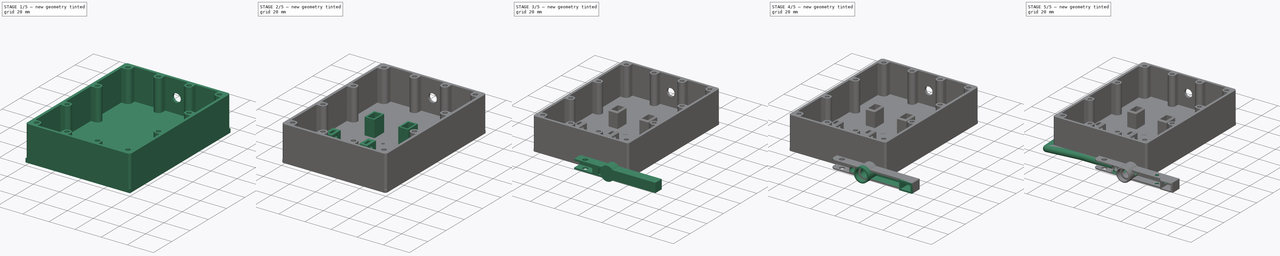
[diagram: build sequence overview — one tinted view per stage of 5, left to right]
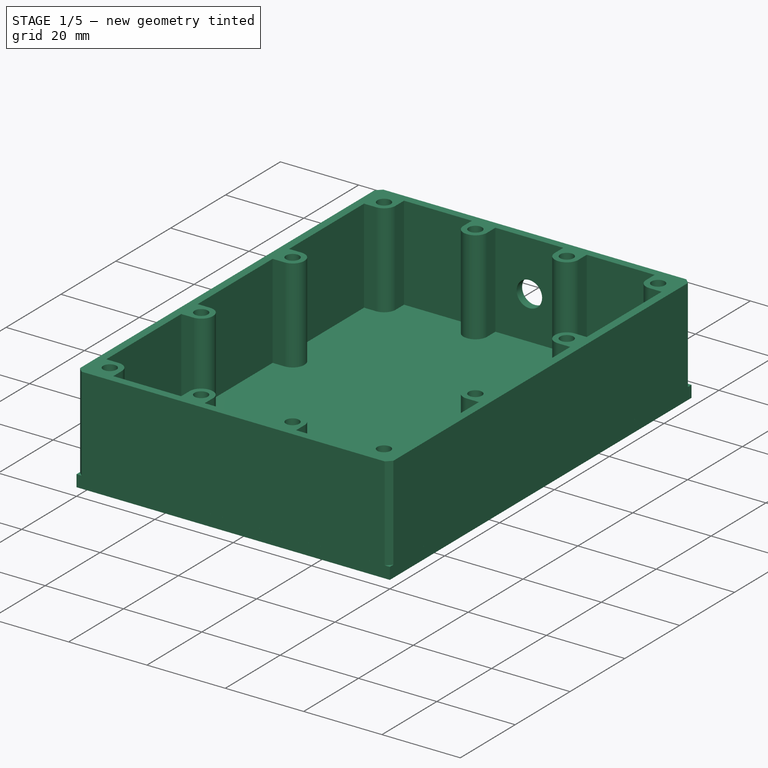
[diagram: stage 1 of 5 — iso view after this stage's code; geometry added in this stage tinted green]
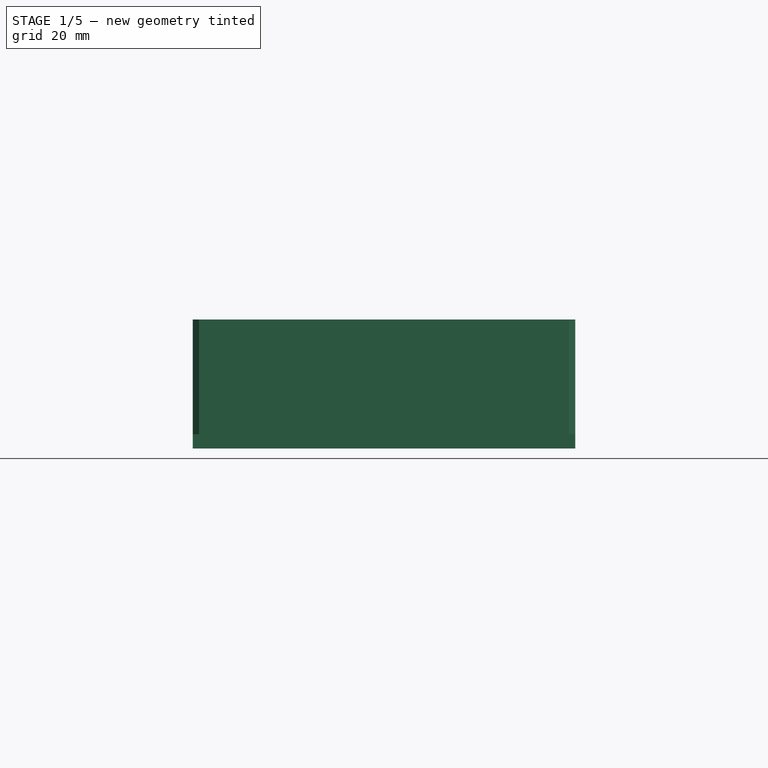
[diagram: stage 1 of 5 — front view after this stage's code; geometry added in this stage tinted green]
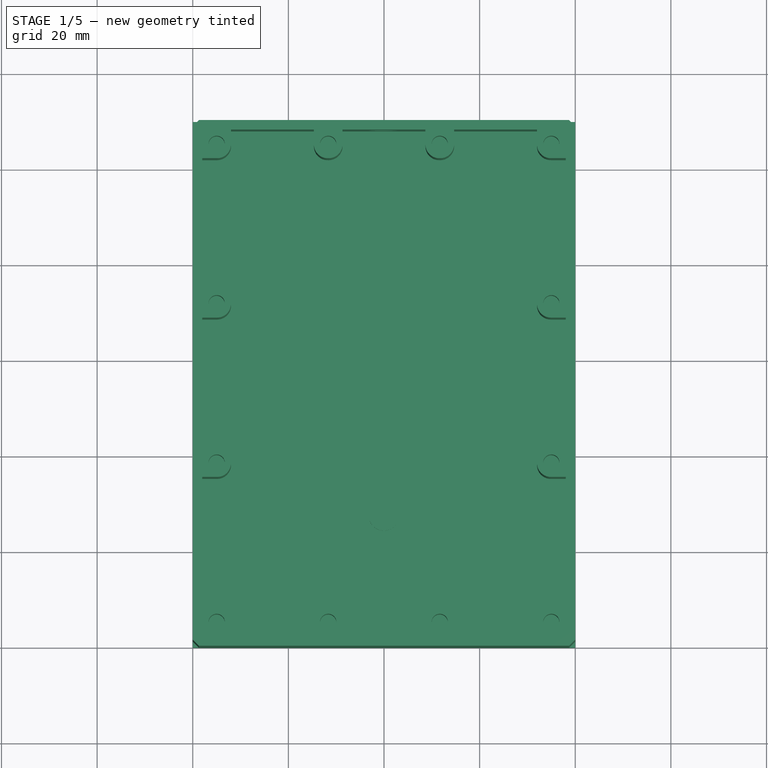
[diagram: stage 1 of 5 — top view after this stage's code; geometry added in this stage tinted green]
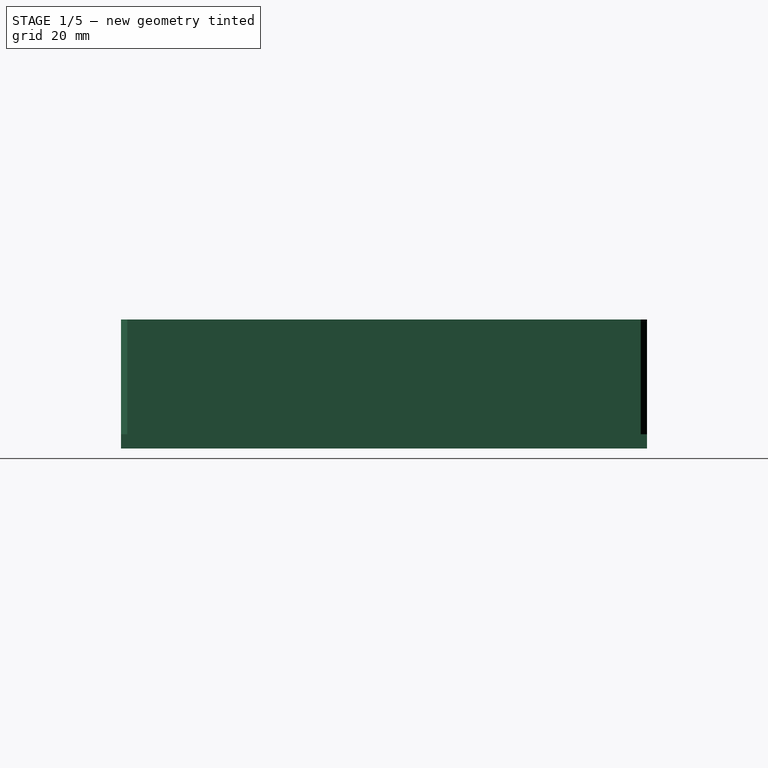
[diagram: stage 1 of 5 — right view after this stage's code; geometry added in this stage tinted green]
FCSTD DOCUMENT  (FreeCAD 1.0R39285 (Git))
Label: NewNylonTest
License: All rights reserved
LicenseURL: https://en.wikipedia.org/wiki/All_rights_reserved
objects: Sketcher::SketchObject×28, PartDesign::Pocket×18, PartDesign::Pad×10, PartDesign::Fillet×7, PartDesign::Chamfer×6, PartDesign::Body×4, App::Part×4, PartDesign::PolarPattern×1
note: 185 computed .brp shape members not serialized (recipe doc carries the construction recipe); baked Part::Feature solids carry a one-line shape summary decoded from their .brp

FEATURE [PartDesign::Body] Body001
  AllowCompound = false
  Group = -> [Sketch002,Pad001,Sketch003,Sketch004,Sketch005,Sketch006,Sketch007,Pocket001,Pocket002,Pocket003,Pocket004,Pocket005,Sketch008,Pad002,Sketch009,Pocket006,Sketch010,Pad003,Fillet001,Fillet002,Fillet003,Fillet004,Fillet005,Sketch011,Pocket007,Sketch012,Pocket008,Sketch013,Pocket009]
  Origin = -> Origin003
  Tip = -> Pocket009
FEATURE [App::Part] Part001  label="RailPart"
  Group = -> [Body001]
  Origin = -> Origin002
FEATURE [Sketcher::SketchObject] Sketch014
  ArcFitTolerance = 1e-06
  AttachmentSupport = -> [XY_Plane005]
  FullyConstrained = true
  MakeInternals = false
  MapMode = 5
  sketch-geometry (4):
    g0: LineSegment StartX=-40 StartY=110 StartZ=0 EndX=-40 EndY=0 EndZ=0
    g1: LineSegment StartX=-40 StartY=0 StartZ=0 EndX=40 EndY=0 EndZ=0
    g2: LineSegment StartX=40 StartY=0 StartZ=0 EndX=40 EndY=110 EndZ=0
    g3: LineSegment StartX=40 StartY=110 StartZ=0 EndX=-40 EndY=110 EndZ=0
  constraints (12):
    c: Coincident(g0,g1)
    c: Coincident(g1,g2)
    c: Coincident(g2,g3)
    c: Coincident(g3,g0)
    c: Vertical(g0)
    c: Vertical(g2)
    c: Horizontal(g1)
    c: Horizontal(g3)
    c: Distance(g0,g2) = 80
    c: Distance(g1,g3) = 110
    c: DistanceY(g0,g-1) = 0
    c: DistanceX(g0,g-1) = 40
FEATURE [PartDesign::Pad] Pad004
  Direction = (0,0,1)
  Length = 3
  Length2 = 10
  Profile = -> Sketch014
  ReferenceAxis = -> Sketch014 [N_Axis]
  Refine = true
  Suppressed = false
  Type = 0
FEATURE [Sketcher::SketchObject] Sketch015
  ArcFitTolerance = 1e-06
  AttachmentSupport = -> [Pad004]
  FullyConstrained = true
  MakeInternals = false
  MapMode = 5
  Placement = pos=(0,0,3) rot=(0,0,1;0rad)
  sketch-geometry (1):
    g0: Circle CenterX=0 CenterY=27.7 CenterZ=0 NormalX=0 NormalY=0 NormalZ=1 AngleXU=0 Radius=3.2
  constraints (3):
    c: Diameter(g0) = 6.4
    c: PointOnObject(g0,g-2)
    c: DistanceY(g-1,g0) = 27.7
FEATURE [PartDesign::Pad] Pad005
  BaseFeature = -> Pad004
  Direction = (0,0,1)
  Length = 1
  Length2 = 10
  Profile = -> Sketch015
  ReferenceAxis = -> Sketch015 [N_Axis]
  Refine = true
  Suppressed = false
  Type = 0
FEATURE [PartDesign::Body] Body002
  AllowCompound = false
  Group = -> [Sketch014,Pad004,Sketch015,Pad005,Sketch016,Pocket010,Sketch017,Pad006,Sketch018,Pocket011,Sketch019,Pocket012,Sketch020,Pad007,Sketch021,Pocket013,Sketch022,Pocket014,Sketch023,Pocket015,Chamfer,Chamfer001,Chamfer002,Chamfer003,Chamfer004]
  Origin = -> Origin005
  Tip = -> Chamfer004
FEATURE [App::Part] Part002  label="LidPlate"
  Group = -> [Body002]
  Origin = -> Origin004
FEATURE [Sketcher::SketchObject] Sketch024
  ArcFitTolerance = 1e-06
  AttachmentSupport = -> [XY_Plane007]
  FullyConstrained = true
  MakeInternals = false
  MapMode = 5
  sketch-geometry (4):
    g0: LineSegment StartX=-40 StartY=110 StartZ=0 EndX=-40 EndY=0 EndZ=0
    g1: LineSegment StartX=-40 StartY=0 StartZ=0 EndX=40 EndY=0 EndZ=0
    g2: LineSegment StartX=40 StartY=0 StartZ=0 EndX=40 EndY=110 EndZ=0
    g3: LineSegment StartX=40 StartY=110 StartZ=0 EndX=-40 EndY=110 EndZ=0
  constraints (12):
    c: Coincident(g0,g1)
    c: Coincident(g1,g2)
    c: Coincident(g2,g3)
    c: Coincident(g3,g0)
    c: Vertical(g0)
    c: Vertical(g2)
    c: Horizontal(g1)
    c: Horizontal(g3)
    c: Distance(g0,g2) = 80
    c: Distance(g1,g3) = 110
    c: DistanceY(g0,g-1) = 0
    c: DistanceX(g0,g-1) = 40
FEATURE [PartDesign::Pad] Pad008
  Direction = (0,0,1)
  Length = 2
  Length2 = 10
  Profile = -> Sketch024
  ReferenceAxis = -> Sketch024 [N_Axis]
  Refine = true
  Suppressed = false
  Type = 0
FEATURE [Sketcher::SketchObject] Sketch030
  ArcFitTolerance = 1e-06
  AttachmentSupport = -> [Pad008]
  FullyConstrained = true
  MakeInternals = false
  MapMode = 5
  Placement = pos=(0,0,2) rot=(0,0,1;0rad)
  sketch-geometry (48):
    g0: LineSegment StartX=-38 StartY=102 StartZ=0 EndX=-32 EndY=102 EndZ=0
    g1: LineSegment StartX=-32 StartY=102 StartZ=0 EndX=-32 EndY=108 EndZ=0
    g2: LineSegment StartX=-14.67 StartY=108 StartZ=0 EndX=-14.67 EndY=102 EndZ=0
    g3: LineSegment StartX=-14.67 StartY=102 StartZ=0 EndX=-8.67 EndY=102 EndZ=0
    g4: LineSegment StartX=-8.67 StartY=102 StartZ=0 EndX=-8.67 EndY=108 EndZ=0
    g5: LineSegment StartX=8.66 StartY=108 StartZ=0 EndX=8.66 EndY=102 EndZ=0
    g6: LineSegment StartX=8.66 StartY=102 StartZ=0 EndX=14.66 EndY=102 EndZ=0
    g7: LineSegment StartX=14.66 StartY=102 StartZ=0 EndX=14.66 EndY=108 EndZ=0
    g8: LineSegment StartX=31.99 StartY=108 StartZ=0 EndX=31.99 EndY=102 EndZ=0
    g9: LineSegment StartX=31.99 StartY=102 StartZ=0 EndX=38 EndY=102 EndZ=0
    g10: LineSegment StartX=-38 StartY=68.66 StartZ=0 EndX=-32 EndY=68.66 EndZ=0
    g11: LineSegment StartX=-32 StartY=68.66 StartZ=0 EndX=-32 EndY=74.66 EndZ=0
    g12: LineSegment StartX=-32 StartY=74.66 StartZ=0 EndX=-38 EndY=74.66 EndZ=0
    g13: LineSegment StartX=38 StartY=74.66 StartZ=0 EndX=32 EndY=74.66 EndZ=0
    g14: LineSegment StartX=32 StartY=74.66 StartZ=0 EndX=32 EndY=68.66 EndZ=0
    g15: LineSegment StartX=32 StartY=68.66 StartZ=0 EndX=38 EndY=68.66 EndZ=0
    g16: LineSegment StartX=-38 StartY=35.33 StartZ=0 EndX=-32 EndY=35.33 EndZ=0
    g17: LineSegment StartX=-32 StartY=35.33 StartZ=0 EndX=-32 EndY=41.33 EndZ=0
    g18: LineSegment StartX=-32 StartY=41.33 StartZ=0 EndX=-38 EndY=41.33 EndZ=0
    g19: LineSegment StartX=38 StartY=41.33 StartZ=0 EndX=32 EndY=41.33 EndZ=0
    g20: LineSegment StartX=32 StartY=41.33 StartZ=0 EndX=32 EndY=35.33 EndZ=0
    g21: LineSegment StartX=32 StartY=35.33 StartZ=0 EndX=38 EndY=35.33 EndZ=0
    g22: LineSegment StartX=38 StartY=8 StartZ=0 EndX=32 EndY=8 EndZ=0
    g23: LineSegment StartX=32 StartY=8 StartZ=0 EndX=32 EndY=2 EndZ=0
    g24: LineSegment StartX=14.66 StartY=2 StartZ=0 EndX=14.66 EndY=8 EndZ=0
    g25: LineSegment StartX=14.66 StartY=8 StartZ=0 EndX=8.66 EndY=8 EndZ=0
    g26: LineSegment StartX=8.66 StartY=8 StartZ=0 EndX=8.66 EndY=2 EndZ=0
    g27: LineSegment StartX=-8.67 StartY=2 StartZ=0 EndX=-8.67 EndY=8 EndZ=0
    g28: LineSegment StartX=-8.67 StartY=8 StartZ=0 EndX=-14.67 EndY=8 EndZ=0
    g29: LineSegment StartX=-14.67 StartY=8 StartZ=0 EndX=-14.67 EndY=2 EndZ=0
    g30: LineSegment StartX=-32 StartY=2 StartZ=0 EndX=-32 EndY=8 EndZ=0
    g31: LineSegment StartX=-32 StartY=8 StartZ=0 EndX=-38 EndY=8 EndZ=0
    g32: LineSegment StartX=-32 StartY=2 StartZ=0 EndX=-14.67 EndY=2 EndZ=0
    g33: LineSegment StartX=-8.67 StartY=2 StartZ=0 EndX=8.66 EndY=2 EndZ=0
    g34: LineSegment StartX=14.66 StartY=2 StartZ=0 EndX=32 EndY=2 EndZ=0
    g35: LineSegment StartX=38 StartY=8 StartZ=0 EndX=38 EndY=35.33 EndZ=0
    g36: LineSegment StartX=38 StartY=41.33 StartZ=0 EndX=38 EndY=68.66 EndZ=0
    g37: LineSegment StartX=38 StartY=74.66 StartZ=0 EndX=38 EndY=102 EndZ=0
    g38: LineSegment StartX=31.99 StartY=108 StartZ=0 EndX=14.66 EndY=108 EndZ=0
    g39: LineSegment StartX=8.66 StartY=108 StartZ=0 EndX=-8.67 EndY=108 EndZ=0
    g40: LineSegment StartX=-14.67 StartY=108 StartZ=0 EndX=-32 EndY=108 EndZ=0
    g41: LineSegment StartX=-38 StartY=102 StartZ=0 EndX=-38 EndY=74.66 EndZ=0
    g42: LineSegment StartX=-38 StartY=68.66 StartZ=0 EndX=-38 EndY=41.33 EndZ=0
    g43: LineSegment StartX=-38 StartY=35.33 StartZ=0 EndX=-38 EndY=8 EndZ=0
    g44: LineSegment StartX=-40 StartY=110 StartZ=0 EndX=-40 EndY=0 EndZ=0
    g45: LineSegment StartX=-40 StartY=0 StartZ=0 EndX=40 EndY=0 EndZ=0
    g46: LineSegment StartX=40 StartY=0 StartZ=0 EndX=40 EndY=110 EndZ=0
    g47: LineSegment StartX=40 StartY=110 StartZ=0 EndX=-40 EndY=110 EndZ=0
  constraints (144):
    c: Coincident(g0,g1)
    c: Vertical(g1)
    c: Horizontal(g0)
    c: Coincident(g2,g3)
    c: Coincident(g3,g4)
    c: Vertical(g2)
    c: Vertical(g4)
    c: Horizontal(g3)
    c: Distance(g2,g4) = 6
    c: Distance(g3,g2) = 6
    c: Coincident(g5,g6)
    c: Coincident(g6,g7)
    c: Vertical(g5)
    c: Vertical(g7)
    c: Horizontal(g6)
    c: Distance(g5,g7) = 6
    c: Distance(g6,g5) = 6
    c: Coincident(g8,g9)
    c: Horizontal(g9)
    c: Vertical(g8)
    c: Coincident(g10,g11)
    c: Coincident(g11,g12)
    c: Vertical(g11)
    c: Horizontal(g10)
    c: Horizontal(g12)
    c: Distance(g12,g11) = 6
    c: Distance(g10,g12) = 6
    c: Coincident(g13,g14)
    c: Coincident(g14,g15)
    c: Horizontal(g13)
    c: Horizontal(g15)
    c: Vertical(g14)
    c: Distance(g14,g13) = 6
    c: Distance(g13,g15) = 6
    c: Coincident(g16,g17)
    c: Coincident(g17,g18)
    c: Vertical(g17)
    c: Horizontal(g16)
    c: Horizontal(g18)
    c: Distance(g18,g17) = 6
    c: Distance(g16,g18) = 6
    c: Coincident(g19,g20)
    c: Coincident(g20,g21)
    c: Horizontal(g19)
    c: Horizontal(g21)
    c: Vertical(g20)
    c: Distance(g20,g19) = 6
    c: Distance(g19,g21) = 6
    c: Coincident(g22,g23)
    c: Vertical(g23)
    c: Horizontal(g22)
    c: Coincident(g24,g25)
    c: Coincident(g25,g26)
    c: Horizontal(g25)
    c: Vertical(g24)
    c: Vertical(g26)
    c: Distance(g24,g26) = 6
    c: Distance(g26,g25) = 6
    c: Coincident(g27,g28)
    c: Coincident(g28,g29)
    c: Horizontal(g28)
    c: Vertical(g27)
    c: Vertical(g29)
    c: Distance(g27,g29) = 6
    c: Distance(g29,g28) = 6
    c: Coincident(g30,g31)
    c: Horizontal(g31)
    c: Vertical(g30)
    c: Coincident(g32,g30)
    c: Coincident(g32,g29)
    c: Horizontal(g32)
    c: Coincident(g33,g27)
    c: Coincident(g33,g26)
    c: Horizontal(g33)
    c: Coincident(g34,g24)
    c: Coincident(g34,g23)
    c: Horizontal(g34)
    c: Coincident(g35,g22)
    c: Coincident(g35,g21)
    c: Vertical(g35)
    c: Coincident(g36,g19)
    c: Coincident(g36,g15)
    c: Vertical(g36)
    c: Coincident(g37,g13)
    c: Coincident(g37,g9)
    c: Vertical(g37)
    c: Coincident(g38,g8)
    c: Coincident(g38,g7)
    c: Horizontal(g38)
    c: Coincident(g39,g5)
    c: Coincident(g39,g4)
    c: Horizontal(g39)
    c: Coincident(g40,g2)
    c: Coincident(g40,g1)
    c: Horizontal(g40)
    c: Coincident(g41,g0)
    c: Coincident(g41,g12)
    c: Vertical(g41)
    c: Coincident(g42,g10)
    c: Coincident(g42,g18)
    c: Vertical(g42)
    c: Coincident(g43,g16)
    c: Coincident(g43,g31)
    c: Vertical(g43)
    c: Coincident(g44,g45)
    c: Coincident(g45,g46)
    c: Coincident(g46,g47)
    c: Coincident(g47,g44)
    c: Vertical(g44)
    c: Vertical(g46)
    c: Horizontal(g45)
    c: Horizontal(g47)
    c: Distance(g44,g46) = 80
    c: Distance(g45,g47) = 110
    c: PointOnObject(g45,g-1)
    c: DistanceX(g44,g-1) = 40
    c: DistanceX(g0,g0) = 6
    c: DistanceX(g44,g0) = 2
    c: DistanceX(g9,g46) = 2
    c: DistanceX(g38,g38) = 17.33
    c: DistanceX(g40,g40) = 17.33
    c: DistanceX(g39,g39) = 17.33
    c: DistanceX(g31,g31) = 6
    c: DistanceX(g16,g16) = 6
    c: DistanceX(g10,g10) = 6
    c: DistanceX(g15,g15) = 6
    c: DistanceX(g21,g21) = 6
    c: DistanceX(g22,g22) = 6
    c: DistanceX(g32,g32) = 17.33
    c: DistanceX(g33,g33) = 17.33
    c: DistanceY(g44,g30) = 2
    c: DistanceY(g27,g29) = 0
    c: DistanceY(g24,g26) = 0
    c: DistanceY(g5,g2) = 0
    c: DistanceY(g7,g5) = 0
    c: DistanceY(g8,g46) = 2
    c: DistanceY(g8,g8) = 6
    c: DistanceY(g23,g23) = 6
    c: DistanceY(g30,g30) = 6
    c: DistanceY(g35,g35) = 27.33
    c: DistanceY(g36,g36) = 27.33
    c: DistanceY(g43,g43) = 27.33
    c: DistanceY(g42,g42) = 27.33
    c: DistanceY(g1,g1) = 6
FEATURE [PartDesign::Pad] Pad009
  BaseFeature = -> Pad008
  Direction = (0,0,1)
  Length = 25
  Length2 = 10
  Profile = -> Sketch030
  ReferenceAxis = -> Sketch030 [N_Axis]
  Refine = true
  Suppressed = false
  Type = 0
FEATURE [Sketcher::SketchObject] Sketch029
  ArcFitTolerance = 1e-06
  AttachmentSupport = -> [Pad009]
  FullyConstrained = true
  MakeInternals = false
  MapMode = 5
  Placement = pos=(0,0,27) rot=(0,0,1;0rad)
  sketch-geometry (12):
    g0: Circle CenterX=-11.667 CenterY=5 CenterZ=0 NormalX=0 NormalY=0 NormalZ=1 AngleXU=0 Radius=1.7
    g1: Circle CenterX=11.666 CenterY=5 CenterZ=0 NormalX=0 NormalY=0 NormalZ=1 AngleXU=0 Radius=1.7
    g2: Circle CenterX=35 CenterY=5 CenterZ=0 NormalX=0 NormalY=0 NormalZ=1 AngleXU=0 Radius=1.7
    g3: Circle CenterX=-35 CenterY=38.333 CenterZ=0 NormalX=0 NormalY=0 NormalZ=1 AngleXU=0 Radius=1.7
    g4: Circle CenterX=-35 CenterY=71.666 CenterZ=0 NormalX=0 NormalY=0 NormalZ=1 AngleXU=0 Radius=1.7
    g5: Circle CenterX=-35 CenterY=105 CenterZ=0 NormalX=0 NormalY=0 NormalZ=1 AngleXU=0 Radius=1.7
    g6: Circle CenterX=35 CenterY=38.333 CenterZ=0 NormalX=0 NormalY=0 NormalZ=1 AngleXU=0 Radius=1.7
    g7: Circle CenterX=35 CenterY=71.666 CenterZ=0 NormalX=0 NormalY=0 NormalZ=1 AngleXU=0 Radius=1.7
    g8: Circle CenterX=35 CenterY=105 CenterZ=0 NormalX=0 NormalY=0 NormalZ=1 AngleXU=0 Radius=1.7
    g9: Circle CenterX=-11.667 CenterY=105 CenterZ=0 NormalX=0 NormalY=0 NormalZ=1 AngleXU=0 Radius=1.7
    g10: Circle CenterX=11.666 CenterY=105 CenterZ=0 NormalX=0 NormalY=0 NormalZ=1 AngleXU=0 Radius=1.7
    g11: Circle CenterX=-35 CenterY=5 CenterZ=0 NormalX=0 NormalY=0 NormalZ=1 AngleXU=0 Radius=1.7
  constraints (36):
    c: Diameter(g0) = 3.4
    c: Diameter(g1) = 3.4
    c: Diameter(g2) = 3.4
    c: Diameter(g3) = 3.4
    c: Diameter(g4) = 3.4
    c: Diameter(g5) = 3.4
    c: Diameter(g6) = 3.4
    c: Diameter(g7) = 3.4
    c: Diameter(g8) = 3.4
    c: Diameter(g9) = 3.4
    c: Diameter(g10) = 3.4
    c: Diameter(g11) = 3.4
    c: DistanceX(g8,g7) = 0
    c: DistanceX(g7,g6) = 0
    c: DistanceX(g6,g2) = 0
    c: DistanceX(g5,g4) = 0
    c: DistanceX(g4,g3) = 0
    c: DistanceX(g3,g11) = 0
    c: DistanceY(g0,g11) = 0
    c: DistanceY(g0,g1) = 0
    c: DistanceY(g2,g1) = 0
    c: DistanceY(g6,g3) = 0
    c: DistanceY(g7,g4) = 0
    c: DistanceY(g10,g8) = 0
    c: DistanceY(g10,g9) = 0
    c: DistanceY(g5,g9) = 0
    c: DistanceY(g-1,g11) = 5
    c: DistanceX(g11,g-1) = 35
    c: DistanceX(g-1,g2) = 35
    c: DistanceX(g11,g0) = 23.333
    c: DistanceX(g0,g1) = 23.333
    c: DistanceX(g9,g0) = 0
    c: DistanceX(g1,g10) = 0
    c: DistanceY(g-1,g5) = 105
    c: DistanceY(g11,g3) = 33.333
    c: DistanceY(g3,g4) = 33.333
FEATURE [PartDesign::Pocket] Pocket016
  BaseFeature = -> Pad009
  Direction = (0,0,-1)
  Length = 10
  Length2 = 5
  Profile = -> Sketch029
  ReferenceAxis = -> Sketch029 [N_Axis]
  Refine = true
  Suppressed = false
  Type = 0
FEATURE [Sketcher::SketchObject] Sketch031
  ArcFitTolerance = 1e-06
  AttachmentSupport = -> [Pocket016]
  FullyConstrained = true
  MakeInternals = false
  MapMode = 5
  Placement = pos=(0,108,0) rot=(1,0,0;1.5708rad)
  sketch-geometry (1):
    g0: Circle CenterX=0 CenterY=14 CenterZ=0 NormalX=0 NormalY=0 NormalZ=1 AngleXU=0 Radius=3.25
  constraints (3):
    c: Diameter(g0) = 6.5
    c: PointOnObject(g0,g-2)
    c: DistanceY(g-1,g0) = 14
FEATURE [PartDesign::Pocket] Pocket017
  BaseFeature = -> Pocket016
  Direction = (0,1,-2e-16)
  Length = 5
  Length2 = 5
  Profile = -> Sketch031
  ReferenceAxis = -> Sketch031 [N_Axis]
  Refine = true
  Suppressed = false
  Type = 1
FEATURE [PartDesign::Fillet] Fillet006
  Base = -> Pocket017 [Edge129,Edge141,Edge145,Edge157,Edge161,Edge173,Edge117,Edge113,Edge101,Edge97,Edge167,Edge163,Edge151,Edge147,Edge135,Edge123,Edge119,Edge107,Edge103,Edge91]
  BaseFeature = -> Pocket017
  Radius = 2.9
  Refine = true
  SupportTransform = false
  Suppressed = false
  UseAllEdges = false
FEATURE [PartDesign::Chamfer] Chamfer005
  Angle = 45
  Base = -> Fillet006 [Edge214,Edge212,Edge217,Edge211]
  BaseFeature = -> Fillet006
  ChamferType = 0
  FlipDirection = false
  Refine = true
  Size = 1.3
  Size2 = 1
  SupportTransform = false
  Suppressed = false
  UseAllEdges = false
FEATURE [PartDesign::Body] Body003
  AllowCompound = false
  Group = -> [Sketch024,Pad008,Sketch029,Sketch030,Pad009,Pocket016,Sketch031,Pocket017,Fillet006,Chamfer005]
  Origin = -> Origin007
  Tip = -> Chamfer005
FEATURE [App::Part] Part003  label="BasePlate"
  Group = -> [Body003]
  Origin = -> Origin006
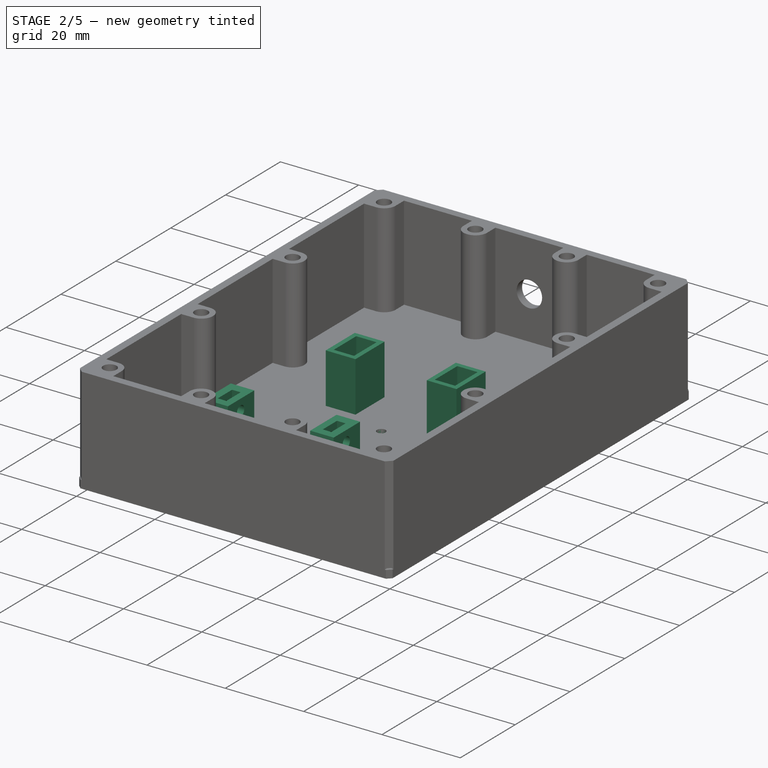
[diagram: stage 2 of 5 — iso view after this stage's code; geometry added in this stage tinted green]
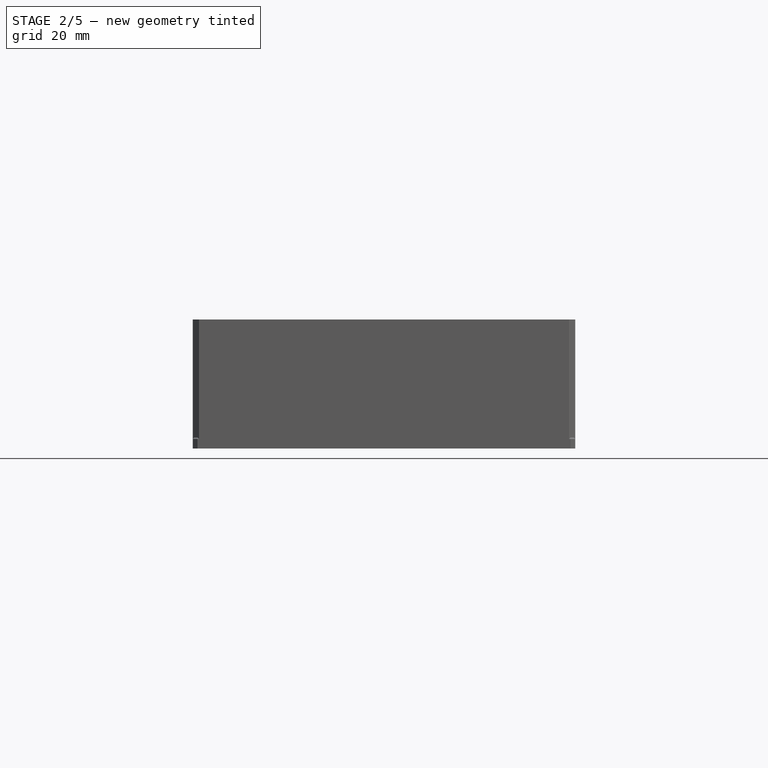
[diagram: stage 2 of 5 — front view after this stage's code; geometry added in this stage tinted green]
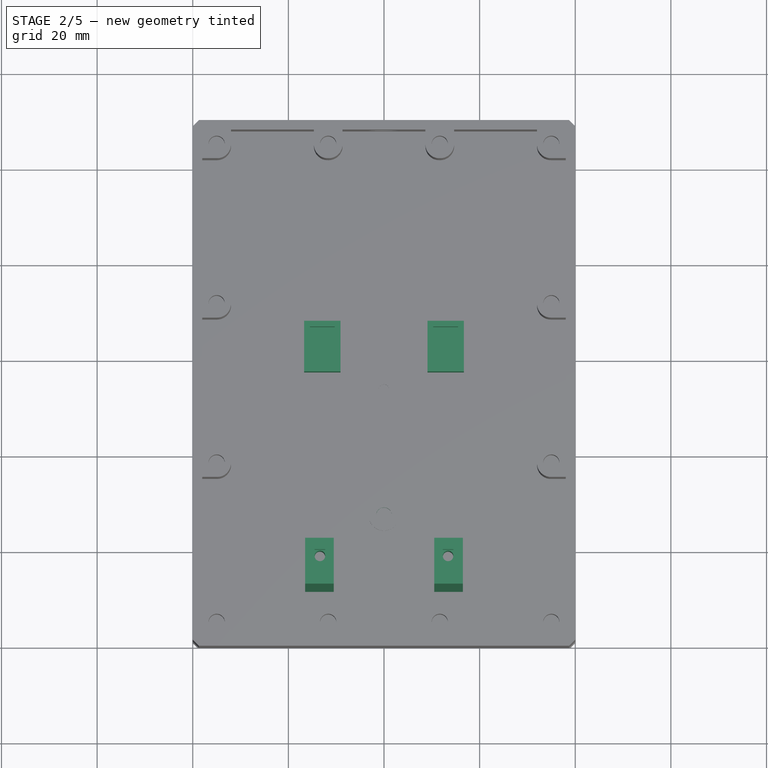
[diagram: stage 2 of 5 — top view after this stage's code; geometry added in this stage tinted green]
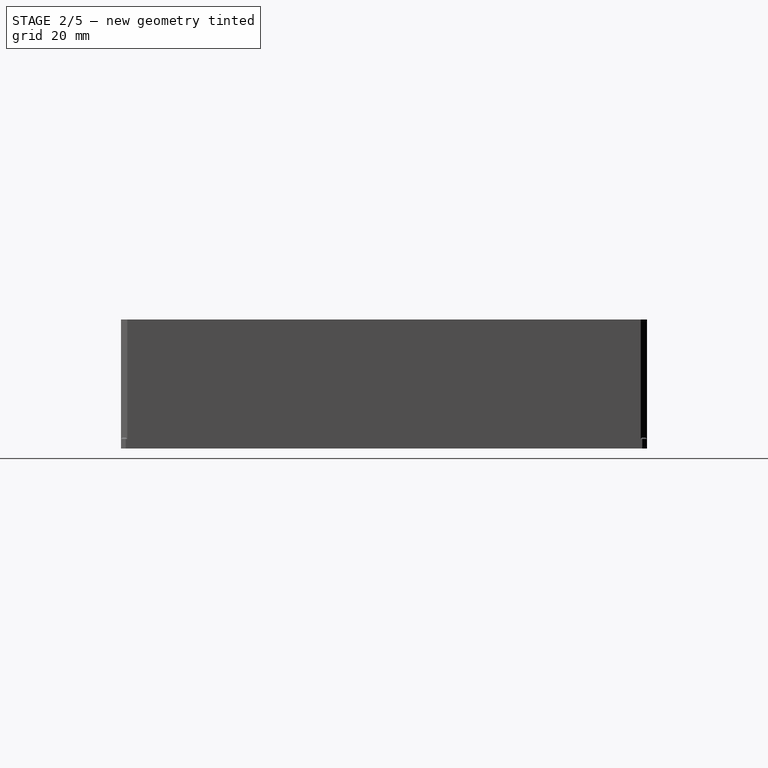
[diagram: stage 2 of 5 — right view after this stage's code; geometry added in this stage tinted green]
FEATURE [Sketcher::SketchObject] Sketch016
  ArcFitTolerance = 1e-06
  AttachmentSupport = -> [Pad005]
  FullyConstrained = true
  MakeInternals = false
  MapMode = 5
  Placement = pos=(0,0,4) rot=(0,0,1;0rad)
  sketch-geometry (1):
    g0: Circle CenterX=0 CenterY=27.7 CenterZ=0 NormalX=0 NormalY=0 NormalZ=1 AngleXU=0 Radius=1.65
  constraints (3):
    c: Diameter(g0) = 3.3
    c: PointOnObject(g0,g-2)
    c: DistanceY(g-1,g0) = 27.7
FEATURE [PartDesign::Pocket] Pocket010
  BaseFeature = -> Pad005
  Direction = (0,0,-1)
  Length = 5
  Length2 = 5
  Profile = -> Sketch016
  ReferenceAxis = -> Sketch016 [N_Axis]
  Refine = true
  Suppressed = false
  Type = 1
FEATURE [Sketcher::SketchObject] Sketch017
  ArcFitTolerance = 1e-06
  AttachmentSupport = -> [Pocket010]
  FullyConstrained = true
  MakeInternals = false
  MapMode = 5
  Placement = pos=(0,0,3) rot=(0,0,1;0rad)
  sketch-geometry (8):
    g0: LineSegment StartX=-16.7 StartY=68.2 StartZ=0 EndX=-16.7 EndY=57.6 EndZ=0
    g1: LineSegment StartX=-16.7 StartY=57.6 StartZ=0 EndX=-9.1 EndY=57.6 EndZ=0
    g2: LineSegment StartX=-9.1 StartY=57.6 StartZ=0 EndX=-9.1 EndY=68.2 EndZ=0
    g3: LineSegment StartX=-9.1 StartY=68.2 StartZ=0 EndX=-16.7 EndY=68.2 EndZ=0
    g4: LineSegment StartX=9.1 StartY=68.2 StartZ=0 EndX=9.1 EndY=57.6 EndZ=0
    g5: LineSegment StartX=9.1 StartY=57.6 StartZ=0 EndX=16.7 EndY=57.6 EndZ=0
    g6: LineSegment StartX=16.7 StartY=57.6 StartZ=0 EndX=16.7 EndY=68.2 EndZ=0
    g7: LineSegment StartX=16.7 StartY=68.2 StartZ=0 EndX=9.1 EndY=68.2 EndZ=0
  constraints (24):
    c: Coincident(g0,g1)
    c: Coincident(g1,g2)
    c: Coincident(g2,g3)
    c: Coincident(g3,g0)
    c: Vertical(g0)
    c: Vertical(g2)
    c: Horizontal(g1)
    c: Horizontal(g3)
    c: Distance(g0,g2) = 7.6
    c: Distance(g1,g3) = 10.6
    c: Coincident(g4,g5)
    c: Coincident(g5,g6)
    c: Coincident(g6,g7)
    c: Coincident(g7,g4)
    c: Vertical(g4)
    c: Vertical(g6)
    c: Horizontal(g5)
    c: Horizontal(g7)
    c: Distance(g4,g6) = 7.6
    c: Distance(g5,g7) = 10.6
    c: DistanceY(g4,g1) = 0
    c: DistanceX(g1,g4) = 18.2
    c: DistanceX(g1,g-1) = 9.1
    c: DistanceY(g-1,g0) = 68.2
FEATURE [PartDesign::Pad] Pad006
  BaseFeature = -> Pocket010
  Direction = (0,0,1)
  Length = 12.8
  Length2 = 10
  Profile = -> Sketch017
  ReferenceAxis = -> Sketch017 [N_Axis]
  Refine = true
  Suppressed = false
  Type = 0
FEATURE [Sketcher::SketchObject] Sketch018
  ArcFitTolerance = 1e-06
  AttachmentSupport = -> [Pad006]
  FullyConstrained = true
  MakeInternals = false
  MapMode = 5
  Placement = pos=(0,0,15.8) rot=(0,0,1;0rad)
  sketch-geometry (8):
    g0: LineSegment StartX=-15.5 StartY=67 StartZ=0 EndX=-15.5 EndY=58.8 EndZ=0
    g1: LineSegment StartX=-15.5 StartY=58.8 StartZ=0 EndX=-10.3 EndY=58.8 EndZ=0
    g2: LineSegment StartX=-10.3 StartY=58.8 StartZ=0 EndX=-10.3 EndY=67 EndZ=0
    g3: LineSegment StartX=-10.3 StartY=67 StartZ=0 EndX=-15.5 EndY=67 EndZ=0
    g4: LineSegment StartX=10.3 StartY=67 StartZ=0 EndX=10.3 EndY=58.8 EndZ=0
    g5: LineSegment StartX=10.3 StartY=58.8 StartZ=0 EndX=15.5 EndY=58.8 EndZ=0
    g6: LineSegment StartX=15.5 StartY=58.8 StartZ=0 EndX=15.5 EndY=67 EndZ=0
    g7: LineSegment StartX=15.5 StartY=67 StartZ=0 EndX=10.3 EndY=67 EndZ=0
  constraints (24):
    c: Coincident(g0,g1)
    c: Coincident(g1,g2)
    c: Coincident(g2,g3)
    c: Coincident(g3,g0)
    c: Vertical(g0)
    c: Vertical(g2)
    c: Horizontal(g1)
    c: Horizontal(g3)
    c: Distance(g0,g2) = 5.2
    c: Distance(g1,g3) = 8.2
    c: Coincident(g4,g5)
    c: Coincident(g5,g6)
    c: Coincident(g6,g7)
    c: Coincident(g7,g4)
    c: Vertical(g4)
    c: Vertical(g6)
    c: Horizontal(g5)
    c: Horizontal(g7)
    c: Distance(g4,g6) = 5.2
    c: Distance(g5,g7) = 8.2
    c: DistanceY(g1,g4) = 0
    c: DistanceY(g-1,g2) = 67
    c: DistanceX(g1,g4) = 20.6
    c: DistanceX(g1,g-1) = 10.3
FEATURE [PartDesign::Pocket] Pocket011
  BaseFeature = -> Pad006
  Direction = (0,0,-1)
  Length = 8.2
  Length2 = 5
  Profile = -> Sketch018
  ReferenceAxis = -> Sketch018 [N_Axis]
  Refine = true
  Suppressed = false
  Type = 0
FEATURE [Sketcher::SketchObject] Sketch019
  ArcFitTolerance = 1e-06
  AttachmentSupport = -> [Pocket011]
  FullyConstrained = true
  MakeInternals = false
  MapMode = 5
  Placement = pos=(0,0,3) rot=(0,0,1;0rad)
  sketch-geometry (13):
    g0: Circle CenterX=0 CenterY=54 CenterZ=0 NormalX=0 NormalY=0 NormalZ=1 AngleXU=0 Radius=1.1
    g1: Circle CenterX=-11.667 CenterY=5 CenterZ=0 NormalX=0 NormalY=0 NormalZ=1 AngleXU=0 Radius=1.7
    g2: Circle CenterX=11.666 CenterY=5 CenterZ=0 NormalX=0 NormalY=0 NormalZ=1 AngleXU=0 Radius=1.7
    g3: Circle CenterX=35 CenterY=5 CenterZ=0 NormalX=0 NormalY=0 NormalZ=1 AngleXU=0 Radius=1.7
    g4: Circle CenterX=-35 CenterY=38.333 CenterZ=0 NormalX=0 NormalY=0 NormalZ=1 AngleXU=0 Radius=1.7
    g5: Circle CenterX=-35 CenterY=71.666 CenterZ=0 NormalX=0 NormalY=0 NormalZ=1 AngleXU=0 Radius=1.7
    g6: Circle CenterX=-35 CenterY=105 CenterZ=0 NormalX=0 NormalY=0 NormalZ=1 AngleXU=0 Radius=1.7
    g7: Circle CenterX=35 CenterY=38.333 CenterZ=0 NormalX=0 NormalY=0 NormalZ=1 AngleXU=0 Radius=1.7
    g8: Circle CenterX=35 CenterY=71.666 CenterZ=0 NormalX=0 NormalY=0 NormalZ=1 AngleXU=0 Radius=1.7
    g9: Circle CenterX=35 CenterY=105 CenterZ=0 NormalX=0 NormalY=0 NormalZ=1 AngleXU=0 Radius=1.7
    g10: Circle CenterX=-11.667 CenterY=105 CenterZ=0 NormalX=0 NormalY=0 NormalZ=1 AngleXU=0 Radius=1.7
    g11: Circle CenterX=11.666 CenterY=105 CenterZ=0 NormalX=0 NormalY=0 NormalZ=1 AngleXU=0 Radius=1.7
    g12: Circle CenterX=-35 CenterY=5 CenterZ=0 NormalX=0 NormalY=0 NormalZ=1 AngleXU=0 Radius=1.7
  constraints (39):
    c: Diameter(g0) = 2.2
    c: PointOnObject(g0,g-2)
    c: DistanceY(g-1,g0) = 54
    c: Diameter(g1) = 3.4
    c: Diameter(g2) = 3.4
    c: Diameter(g3) = 3.4
    c: Diameter(g4) = 3.4
    c: Diameter(g5) = 3.4
    c: Diameter(g6) = 3.4
    c: Diameter(g7) = 3.4
    c: Diameter(g8) = 3.4
    c: Diameter(g9) = 3.4
    c: Diameter(g10) = 3.4
    c: Diameter(g11) = 3.4
    c: Diameter(g12) = 3.4
    c: DistanceX(g9,g8) = 0
    c: DistanceX(g8,g7) = 0
    c: DistanceX(g7,g3) = 0
    c: DistanceX(g6,g5) = 0
    c: DistanceX(g5,g4) = 0
    c: DistanceX(g4,g12) = 0
    c: DistanceY(g1,g12) = 0
    c: DistanceY(g1,g2) = 0
    c: DistanceY(g3,g2) = 0
    c: DistanceY(g7,g4) = 0
    c: DistanceY(g8,g5) = 0
    c: DistanceY(g11,g9) = 0
    c: DistanceY(g11,g10) = 0
    c: DistanceY(g6,g10) = 0
    c: DistanceY(g-1,g12) = 5
    c: DistanceX(g12,g-1) = 35
    c: DistanceX(g-1,g3) = 35
    c: DistanceX(g12,g1) = 23.333
    c: DistanceX(g1,g2) = 23.333
    c: DistanceX(g10,g1) = 0
    c: DistanceX(g2,g11) = 0
    c: DistanceY(g-1,g6) = 105
    c: DistanceY(g12,g4) = 33.333
    c: DistanceY(g4,g5) = 33.333
FEATURE [PartDesign::Pocket] Pocket012
  BaseFeature = -> Pocket011
  Direction = (0,0,-1)
  Length = 5
  Length2 = 5
  Profile = -> Sketch019
  ReferenceAxis = -> Sketch019 [N_Axis]
  Refine = true
  Suppressed = false
  Type = 1
FEATURE [Sketcher::SketchObject] Sketch020
  ArcFitTolerance = 1e-06
  AttachmentSupport = -> [Pocket012]
  FullyConstrained = true
  MakeInternals = false
  MapMode = 5
  Placement = pos=(0,0,3) rot=(0,0,1;0rad)
  sketch-geometry (8):
    g0: LineSegment StartX=16.5 StartY=22.7 StartZ=0 EndX=10.5 EndY=22.7 EndZ=0
    g1: LineSegment StartX=10.5 StartY=22.7 StartZ=0 EndX=10.5 EndY=11.7 EndZ=0
    g2: LineSegment StartX=10.5 StartY=11.7 StartZ=0 EndX=16.5 EndY=11.7 EndZ=0
    g3: LineSegment StartX=16.5 StartY=11.7 StartZ=0 EndX=16.5 EndY=22.7 EndZ=0
    g4: LineSegment StartX=-10.5 StartY=22.7 StartZ=0 EndX=-16.5 EndY=22.7 EndZ=0
    g5: LineSegment StartX=-16.5 StartY=22.7 StartZ=0 EndX=-16.5 EndY=11.7 EndZ=0
    g6: LineSegment StartX=-16.5 StartY=11.7 StartZ=0 EndX=-10.5 EndY=11.7 EndZ=0
    g7: LineSegment StartX=-10.5 StartY=11.7 StartZ=0 EndX=-10.5 EndY=22.7 EndZ=0
  constraints (24):
    c: Coincident(g0,g1)
    c: Coincident(g1,g2)
    c: Coincident(g2,g3)
    c: Coincident(g3,g0)
    c: Horizontal(g0)
    c: Horizontal(g2)
    c: Vertical(g1)
    c: Vertical(g3)
    c: Distance(g1,g3) = 6
    c: Distance(g0,g2) = 11
    c: Coincident(g4,g5)
    c: Coincident(g5,g6)
    c: Coincident(g6,g7)
    c: Coincident(g7,g4)
    c: Horizontal(g4)
    c: Horizontal(g6)
    c: Vertical(g5)
    c: Vertical(g7)
    c: Distance(g5,g7) = 6
    c: Distance(g4,g6) = 11
    c: DistanceY(g1,g6) = 0
    c: DistanceX(g6,g1) = 21
    c: DistanceX(g6,g-1) = 10.5
    c: DistanceY(g-1,g4) = 22.7
FEATURE [PartDesign::Pad] Pad007
  BaseFeature = -> Pocket012
  Direction = (0,0,1)
  Length = 18.55
  Length2 = 10
  Profile = -> Sketch020
  ReferenceAxis = -> Sketch020 [N_Axis]
  Refine = true
  Suppressed = false
  Type = 0
FEATURE [Sketcher::SketchObject] Sketch021
  ArcFitTolerance = 1e-06
  AttachmentSupport = -> [Pad007]
  FullyConstrained = true
  MakeInternals = false
  MapMode = 5
  Placement = pos=(-16.5,0,0) rot=(0.57735,-0.57735,-0.57735;2.0944rad)
  sketch-geometry (4):
    g0: LineSegment StartX=-11.7 StartY=3.05 StartZ=0 EndX=-11.7 EndY=21.6 EndZ=0
    g1: LineSegment StartX=-11.7 StartY=21.6 StartZ=0 EndX=-13.1 EndY=21.6 EndZ=0
    g2: LineSegment StartX=-13.1 StartY=21.6 StartZ=0 EndX=-11.7 EndY=3.05 EndZ=0
    g3: Circle CenterX=-17.7 CenterY=18.675 CenterZ=0 NormalX=0 NormalY=0 NormalZ=1 AngleXU=0 Radius=1.35
  constraints (12):
    c: Vertical(g0)
    c: Coincident(g0,g1)
    c: Horizontal(g1)
    c: Coincident(g1,g2)
    c: Coincident(g2,g0)
    c: DistanceY(g-1,g0) = 3.05
    c: DistanceY(g0,g0) = 18.55
    c: DistanceX(g1,g-1) = 13.1
    c: DistanceX(g0,g-1) = 11.7
    c: Diameter(g3) = 2.7
    c: DistanceX(g3,g-1) = 17.7
    c: DistanceY(g-1,g3) = 18.675
FEATURE [PartDesign::Pocket] Pocket013
  BaseFeature = -> Pad007
  Direction = (1,0,0)
  Length = 5
  Length2 = 5
  Profile = -> Sketch021
  ReferenceAxis = -> Sketch021 [N_Axis]
  Refine = true
  Suppressed = false
  Type = 1
FEATURE [Sketcher::SketchObject] Sketch022
  ArcFitTolerance = 1e-06
  AttachmentSupport = -> [Pocket013]
  FullyConstrained = true
  MakeInternals = false
  MapMode = 5
  Placement = pos=(0,0,21.55) rot=(0,0,1;0rad)
  sketch-geometry (8):
    g0: LineSegment StartX=-14.5 StartY=20.3 StartZ=0 EndX=-14.5 EndY=15.1 EndZ=0
    g1: LineSegment StartX=-14.5 StartY=15.1 StartZ=0 EndX=-12.3 EndY=15.1 EndZ=0
    g2: LineSegment StartX=-12.3 StartY=15.1 StartZ=0 EndX=-12.3 EndY=20.3 EndZ=0
    g3: LineSegment StartX=-12.3 StartY=20.3 StartZ=0 EndX=-14.5 EndY=20.3 EndZ=0
    g4: LineSegment StartX=12.3 StartY=20.3 StartZ=0 EndX=12.3 EndY=15.1 EndZ=0
    g5: LineSegment StartX=12.3 StartY=15.1 StartZ=0 EndX=14.5 EndY=15.1 EndZ=0
    g6: LineSegment StartX=14.5 StartY=15.1 StartZ=0 EndX=14.5 EndY=20.3 EndZ=0
    g7: LineSegment StartX=14.5 StartY=20.3 StartZ=0 EndX=12.3 EndY=20.3 EndZ=0
  constraints (24):
    c: Coincident(g0,g1)
    c: Coincident(g1,g2)
    c: Coincident(g2,g3)
    c: Coincident(g3,g0)
    c: Vertical(g0)
    c: Vertical(g2)
    c: Horizontal(g1)
    c: Horizontal(g3)
    c: Distance(g0,g2) = 2.2
    c: Distance(g1,g3) = 5.2
    c: Coincident(g4,g5)
    c: Coincident(g5,g6)
    c: Coincident(g6,g7)
    c: Coincident(g7,g4)
    c: Vertical(g4)
    c: Vertical(g6)
    c: Horizontal(g5)
    c: Horizontal(g7)
    c: Distance(g4,g6) = 2.2
    c: Distance(g5,g7) = 5.2
    c: DistanceY(g1,g4) = 0
    c: DistanceY(g-1,g2) = 20.3
    c: DistanceX(g1,g-1) = 12.3
    c: DistanceX(g-1,g4) = 12.3
FEATURE [PartDesign::Pocket] Pocket014
  BaseFeature = -> Pocket013
  Direction = (0,0,-1)
  Length = 5.7
  Length2 = 5
  Profile = -> Sketch022
  ReferenceAxis = -> Sketch022 [N_Axis]
  Refine = true
  Suppressed = false
  Type = 0
FEATURE [Sketcher::SketchObject] Sketch023
  ArcFitTolerance = 1e-06
  AttachmentSupport = -> [Pocket014]
  FullyConstrained = true
  MakeInternals = false
  MapMode = 5
  Placement = pos=(0,0,15.85) rot=(0,0,1;0rad)
  sketch-geometry (2):
    g0: Circle CenterX=13.4 CenterY=19 CenterZ=0 NormalX=0 NormalY=0 NormalZ=1 AngleXU=0 Radius=1.1
    g1: Circle CenterX=-13.4 CenterY=19 CenterZ=0 NormalX=0 NormalY=0 NormalZ=1 AngleXU=0 Radius=1.1
  constraints (6):
    c: Diameter(g0) = 2.2
    c: Diameter(g1) = 2.2
    c: DistanceX(g1,g-1) = 13.4
    c: DistanceX(g-1,g0) = 13.4
    c: DistanceY(g1,g0) = 0
    c: DistanceY(g-1,g0) = 19
FEATURE [PartDesign::Pocket] Pocket015
  BaseFeature = -> Pocket014
  Direction = (0,0,-1)
  Length = 5
  Length2 = 5
  Profile = -> Sketch023
  ReferenceAxis = -> Sketch023 [N_Axis]
  Refine = true
  Suppressed = false
  Type = 1
FEATURE [PartDesign::Chamfer] Chamfer
  Angle = 45
  Base = -> Pocket015 [Edge10,Edge28,Edge7,Edge4,Edge2,Edge8,Edge1,Edge5]
  BaseFeature = -> Pocket015
  ChamferType = 0
  FlipDirection = false
  Refine = true
  Size = 1
  Size2 = 1
  SupportTransform = false
  Suppressed = false
  UseAllEdges = false
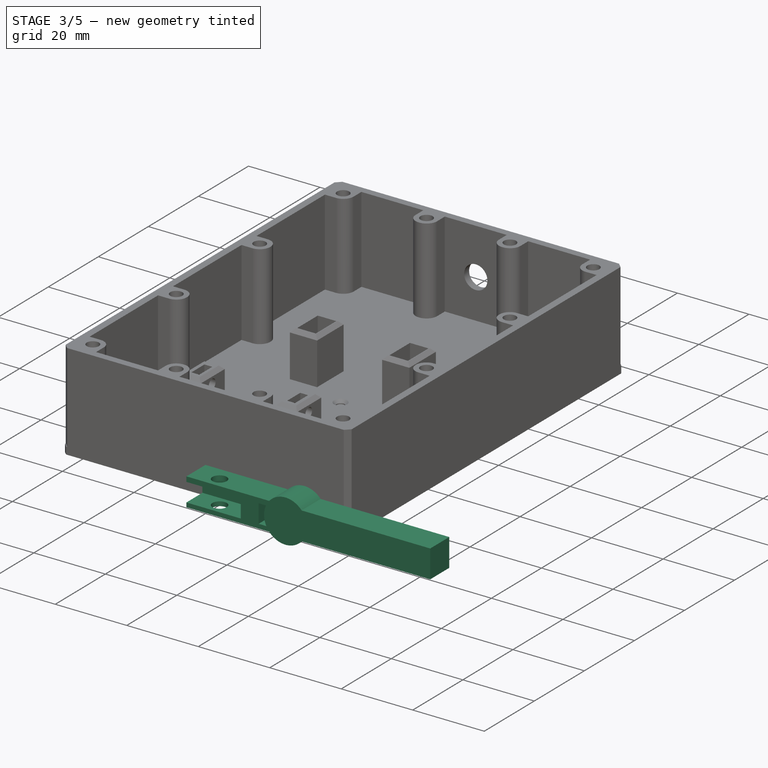
[diagram: stage 3 of 5 — iso view after this stage's code; geometry added in this stage tinted green]
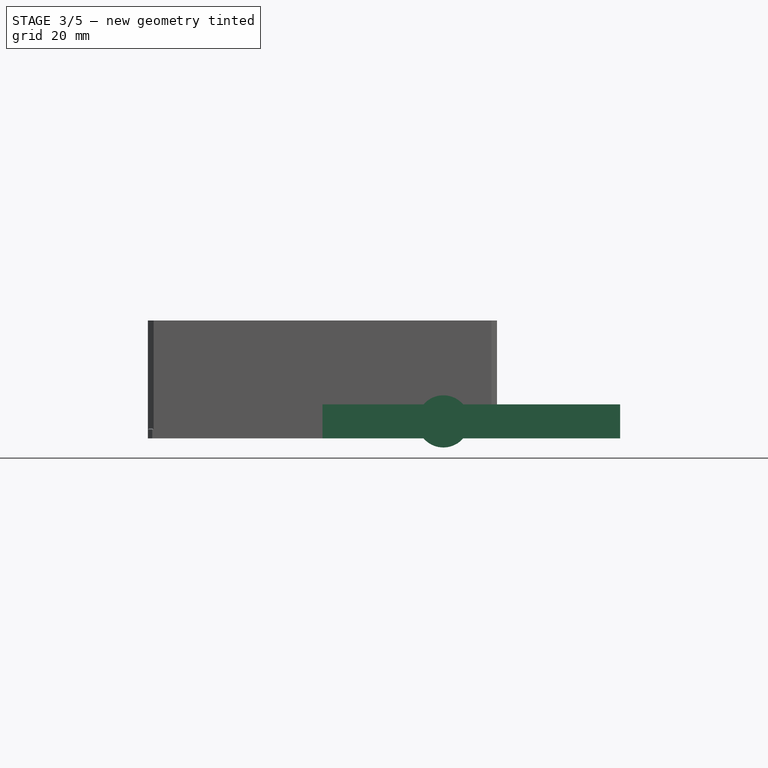
[diagram: stage 3 of 5 — front view after this stage's code; geometry added in this stage tinted green]
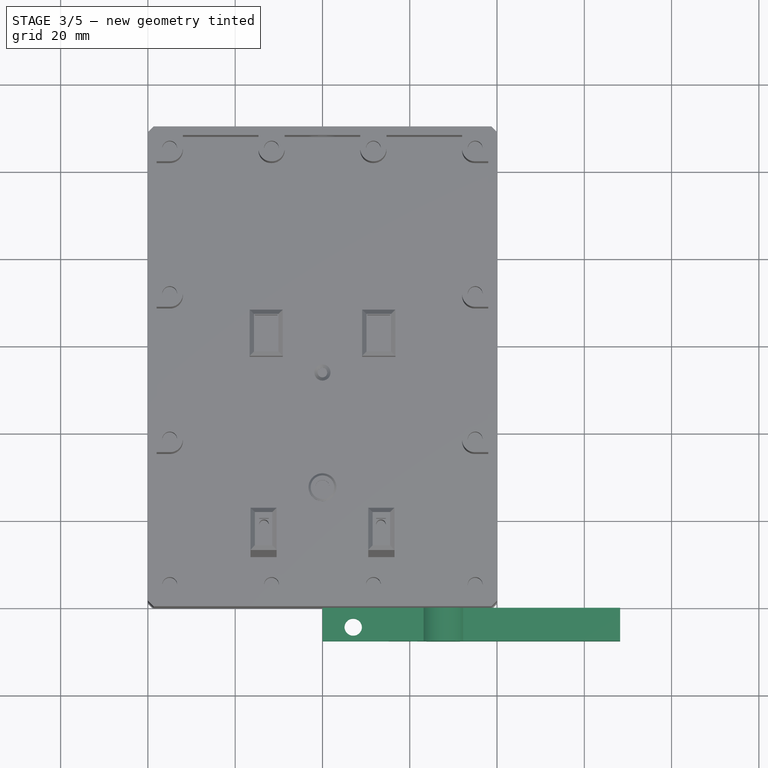
[diagram: stage 3 of 5 — top view after this stage's code; geometry added in this stage tinted green]
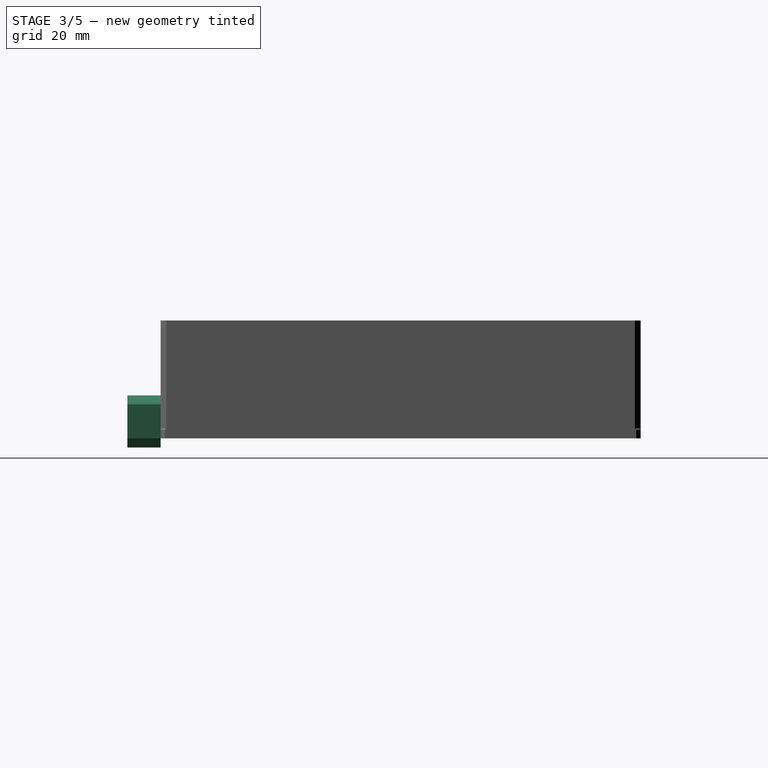
[diagram: stage 3 of 5 — right view after this stage's code; geometry added in this stage tinted green]
FEATURE [PartDesign::Body] Body
  AllowCompound = false
  Group = -> [Sketch,Pad,Fillet,Sketch001,Pocket,PolarPattern]
  Origin = -> Origin001
  Tip = -> PolarPattern
FEATURE [App::Part] Part  label="PaddlePart"
  Group = -> [Body]
  Origin = -> Origin
FEATURE [Sketcher::SketchObject] Sketch002
  ArcFitTolerance = 1e-06
  AttachmentSupport = -> [XZ_Plane003]
  FullyConstrained = true
  MakeInternals = false
  MapMode = 5
  Placement = pos=(0,0,0) rot=(1,0,0;1.5708rad)
  sketch-geometry (8):
    g0: LineSegment StartX=0 StartY=7.79229 StartZ=0 EndX=0 EndY=-0.00771353 EndZ=0
    g1: LineSegment StartX=0 StartY=-0.00771353 StartZ=0 EndX=23.1733 EndY=-0.00771353 EndZ=0
    g2: LineSegment StartX=68.2 StartY=0 StartZ=0 EndX=68.2 EndY=7.8 EndZ=0
    g3: LineSegment StartX=68.2 StartY=7.8 StartZ=0 EndX=32.22 EndY=7.8 EndZ=0
    g4: ArcOfCircle CenterX=27.7 CenterY=3.89229 CenterZ=0 NormalX=0 NormalY=0 NormalZ=1 AngleXU=0 Radius=5.975 StartAngle=0.712874 EndAngle=2.43128
    g5: LineSegment StartX=23.17 StartY=7.7884 StartZ=0 EndX=0 EndY=7.79229 EndZ=0
    g6: LineSegment StartX=32.2233 StartY=-0.0115571 StartZ=0 EndX=68.2 EndY=0 EndZ=0
    g7: ArcOfCircle CenterX=27.7 CenterY=3.89229 CenterZ=0 NormalX=0 NormalY=0 NormalZ=1 AngleXU=0 Radius=5.975 StartAngle=3.85276 EndAngle=5.57117
  constraints (26):
    c: Coincident(g0,g1)
    c: Coincident(g6,g2)
    c: Coincident(g2,g3)
    c: Coincident(g5,g0)
    c: Vertical(g0)
    c: Vertical(g2)
    c: Horizontal(g1)
    c: Horizontal(g3)
    c: PointOnObject(g0,g-2)
    c: PointOnObject(g6,g-1)
    c: DistanceY(g0,g0) = 7.8
    c: DistanceX(g5,g3) = 68.2
    c: Diameter(g4) = 11.95
    c: DistanceY(g0,g4) = 3.9
    c: DistanceX(g0,g4) = 27.7
    c: PointOnObject(g1,g7)
    c: Coincident(g7,g6)
    c: Coincident(g4,g3)
    c: Equal(g4,g7)
    c: Coincident(g4,g5)
    c: PointOnObject(g7,g1)
    c: Coincident(g4,g7)
    c: DistanceX(g4,g3) = 9.05
    c: DistanceX(g1,g6) = 9.05
    c: DistanceY(g2,g2) = 7.8
    c: DistanceX(g3,g3) = 35.98
FEATURE [PartDesign::Pad] Pad001
  Direction = (0,-1,2e-16)
  Length = 7.6
  Length2 = 10
  Placement = pos=(0,0,0) rot=(1,0,0;1.5708rad)
  Profile = -> Sketch002
  ReferenceAxis = -> Sketch002 [N_Axis]
  Refine = true
  Suppressed = false
  Type = 0
FEATURE [Sketcher::SketchObject] Sketch003
  ArcFitTolerance = 1e-06
  AttachmentSupport = -> [Pad001]
  FullyConstrained = true
  MakeInternals = false
  MapMode = 5
  Placement = pos=(0.001306,3.4e-15,7.79229) rot=(8.4e-05,0,1;3.14159rad)
  sketch-geometry (1):
    g0: Circle CenterX=-7.04 CenterY=4.4 CenterZ=0 NormalX=0 NormalY=0 NormalZ=1 AngleXU=0 Radius=2
  constraints (3):
    c: Diameter(g0) = 4
    c: DistanceX(g-1,g0) = -7.04
    c: DistanceY(g-1,g0) = 4.4
FEATURE [PartDesign::Pocket] Pocket001
  BaseFeature = -> Pad001
  Direction = (-0.000167602,0,-1)
  Length = 5
  Length2 = 5
  Placement = pos=(0,0,0) rot=(1,0,0;1.5708rad)
  Profile = -> Sketch003
  ReferenceAxis = -> Sketch003 [N_Axis]
  Refine = true
  Suppressed = false
  Type = 1
FEATURE [Sketcher::SketchObject] Sketch004
  ArcFitTolerance = 1e-06
  AttachmentSupport = -> [Pocket001]
  FullyConstrained = true
  MakeInternals = false
  MapMode = 5
  Placement = pos=(0,-7.6,0) rot=(1,0,0;1.5708rad)
  sketch-geometry (4):
    g0: LineSegment StartX=0 StartY=6.4 StartZ=0 EndX=15.2 EndY=6.4 EndZ=0
    g1: LineSegment StartX=15.2 StartY=6.4 StartZ=0 EndX=15.2 EndY=1.2 EndZ=0
    g2: LineSegment StartX=15.2 StartY=1.2 StartZ=0 EndX=0 EndY=1.2 EndZ=0
    g3: LineSegment StartX=0 StartY=1.2 StartZ=0 EndX=0 EndY=6.4 EndZ=0
  constraints (12):
    c: Coincident(g0,g1)
    c: Coincident(g1,g2)
    c: Coincident(g2,g3)
    c: Coincident(g3,g0)
    c: Horizontal(g0)
    c: Horizontal(g2)
    c: Vertical(g1)
    c: Vertical(g3)
    c: Distance(g0,g2) = 5.2
    c: PointOnObject(g0,g-2)
    c: DistanceY(g-1,g2) = 1.2
    c: DistanceX(g0,g0) = 15.2
FEATURE [PartDesign::Pocket] Pocket002
  BaseFeature = -> Pocket001
  Direction = (0,1,-2e-16)
  Length = 6.4
  Length2 = 5
  Placement = pos=(0,0,0) rot=(1,0,0;1.5708rad)
  Profile = -> Sketch004
  ReferenceAxis = -> Sketch004 [N_Axis]
  Refine = true
  Suppressed = false
  Type = 0
FEATURE [Sketcher::SketchObject] Sketch006
  ArcFitTolerance = 1e-06
  AttachmentSupport = -> [Pocket002]
  FullyConstrained = false
  MakeInternals = false
  MapMode = 5
  Placement = pos=(0,-7.6,0) rot=(1,0,0;1.5708rad)
  sketch-geometry (4):
    g0: LineSegment StartX=22.2732 StartY=6.4 StartZ=0 EndX=20.2 EndY=6.4 EndZ=0
    g1: LineSegment StartX=20.2 StartY=6.4 StartZ=0 EndX=20.2 EndY=1.2 EndZ=0
    g2: ArcOfCircle CenterX=27.7 CenterY=3.9 CenterZ=0 NormalX=0 NormalY=0 NormalZ=1 AngleXU=0 Radius=5.975 StartAngle=2.7099 EndAngle=3.61047
    g3: LineSegment StartX=20.2 StartY=1.2 StartZ=0 EndX=22.3698 EndY=1.2 EndZ=0
  constraints (10):
    c: Coincident(g0,g1)
    c: Horizontal(g0)
    c: Vertical(g1)
    c: Diameter(g2) = 11.95
    c: DistanceY(g-1,g2) = 3.9
    c: DistanceX(g-1,g2) = 27.7
    c: Coincident(g2,g0)
    c: Coincident(g3,g1)
    c: Coincident(g3,g2)
    c: Horizontal(g3)
FEATURE [PartDesign::Pocket] Pocket003
  BaseFeature = -> Pocket002
  Direction = (0,1,-2e-16)
  Length = 6.4
  Length2 = 5
  Placement = pos=(0,0,0) rot=(1,0,0;1.5708rad)
  Profile = -> Sketch006
  ReferenceAxis = -> Sketch006 [N_Axis]
  Refine = true
  Suppressed = false
  Type = 0
FEATURE [PartDesign::Chamfer] Chamfer001
  Angle = 45
  Base = -> Chamfer [Edge60,Edge64,Edge72,Edge76,Edge74,Edge70,Edge68,Edge66,Edge51,Edge44,Edge46,Edge53]
  BaseFeature = -> Chamfer
  ChamferType = 0
  FlipDirection = false
  Refine = true
  Size = 1.3
  Size2 = 1
  SupportTransform = false
  Suppressed = false
  UseAllEdges = false
FEATURE [PartDesign::Chamfer] Chamfer002
  Angle = 45
  Base = -> Chamfer001 [Edge123,Edge182,Edge127,Edge120,Edge137,Edge191,Edge141,Edge134,Edge159,Edge156,Edge154,Edge158,Edge151,Edge148,Edge146,Edge150]
  BaseFeature = -> Chamfer001
  ChamferType = 0
  FlipDirection = false
  Refine = true
  Size = 1
  Size2 = 1
  SupportTransform = false
  Suppressed = false
  UseAllEdges = false
FEATURE [PartDesign::Chamfer] Chamfer003
  Angle = 45
  Base = -> Chamfer002 [Edge25]
  BaseFeature = -> Chamfer002
  ChamferType = 0
  FlipDirection = false
  Refine = true
  Size = 0.75
  Size2 = 1
  SupportTransform = false
  Suppressed = false
  UseAllEdges = false
FEATURE [PartDesign::Chamfer] Chamfer004
  Angle = 45
  Base = -> Chamfer003 [Edge64]
  BaseFeature = -> Chamfer003
  ChamferType = 0
  FlipDirection = false
  Refine = true
  Size = 0.5
  Size2 = 1
  SupportTransform = false
  Suppressed = false
  UseAllEdges = false
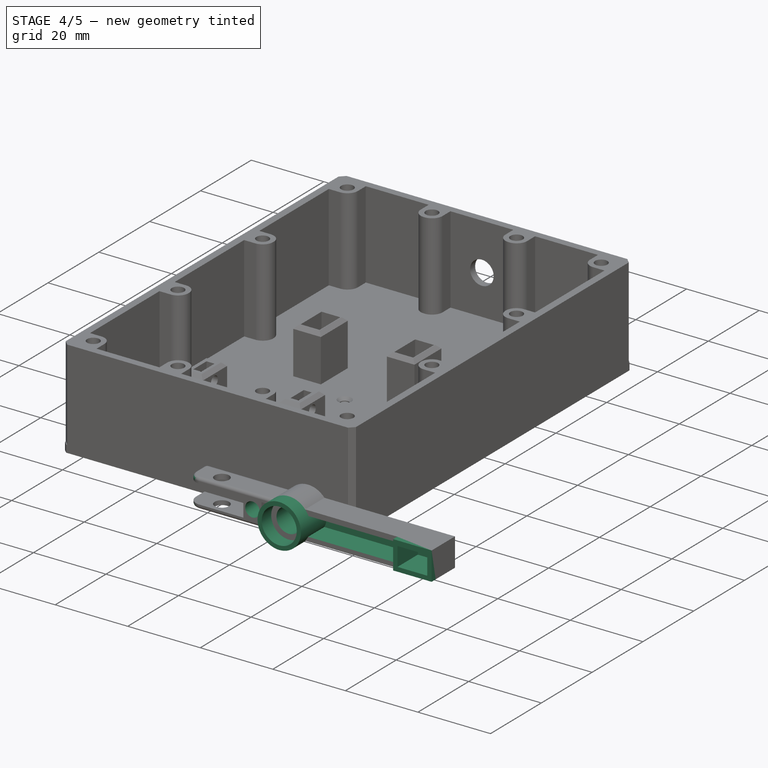
[diagram: stage 4 of 5 — iso view after this stage's code; geometry added in this stage tinted green]
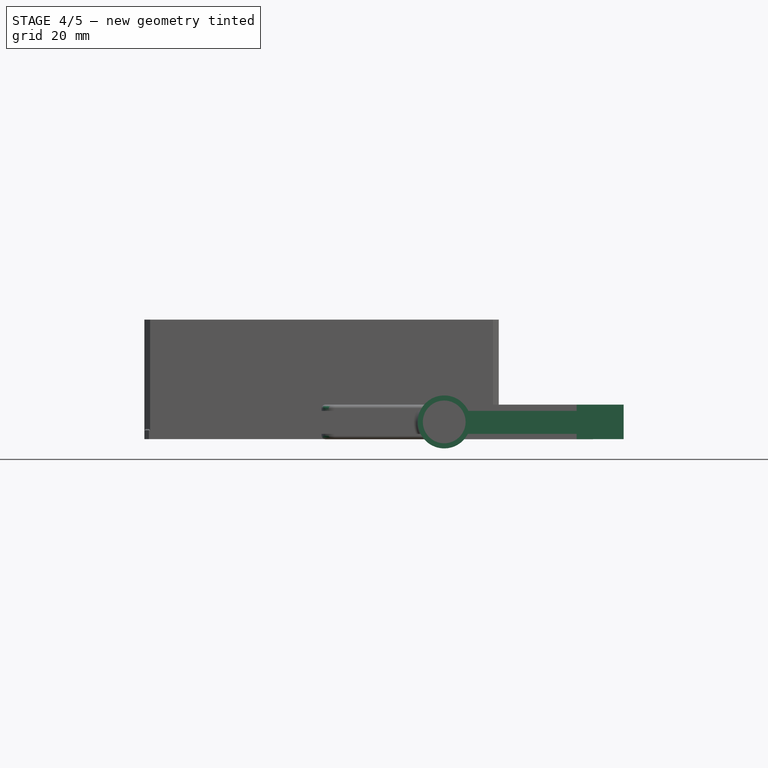
[diagram: stage 4 of 5 — front view after this stage's code; geometry added in this stage tinted green]
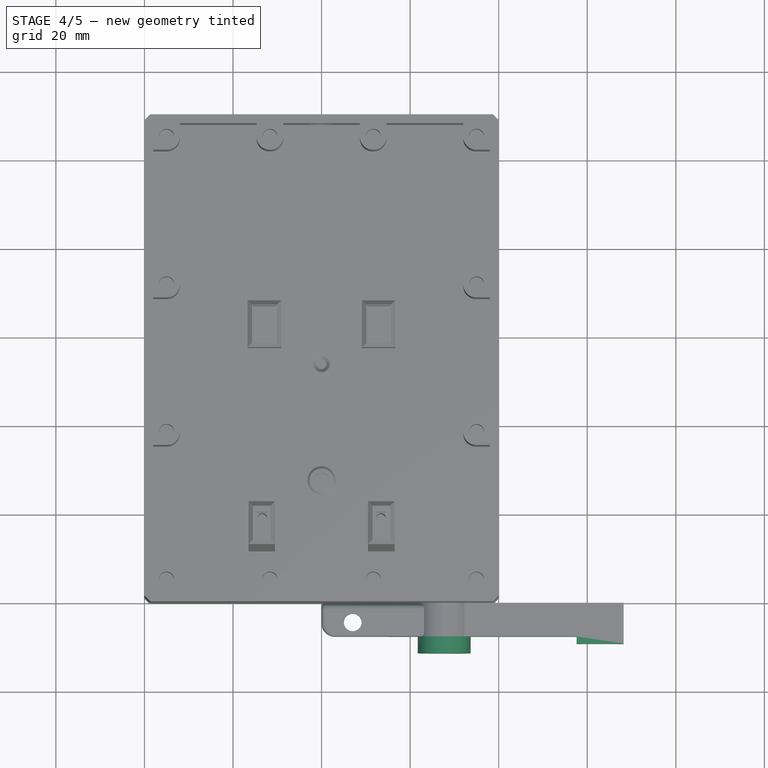
[diagram: stage 4 of 5 — top view after this stage's code; geometry added in this stage tinted green]
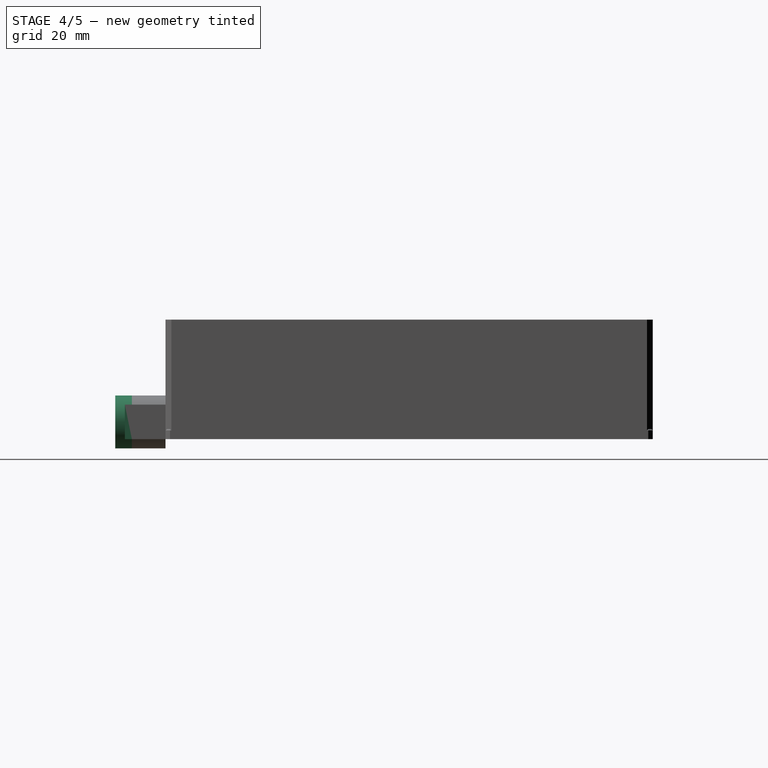
[diagram: stage 4 of 5 — right view after this stage's code; geometry added in this stage tinted green]
FEATURE [Sketcher::SketchObject] Sketch005
  ArcFitTolerance = 1e-06
  AttachmentSupport = -> [Pocket003]
  FullyConstrained = false
  MakeInternals = false
  MapMode = 5
  Placement = pos=(0,-7.6,0) rot=(1,0,0;1.5708rad)
  sketch-geometry (4):
    g0: LineSegment StartX=57.6 StartY=6.4 StartZ=0 EndX=57.6 EndY=1.2 EndZ=0
    g1: LineSegment StartX=57.6 StartY=1.2 StartZ=0 EndX=33.0302 EndY=1.2 EndZ=0
    g2: LineSegment StartX=33.1268 StartY=6.4 StartZ=0 EndX=57.6 EndY=6.4 EndZ=0
    g3: ArcOfCircle CenterX=27.7 CenterY=3.9 CenterZ=0 NormalX=0 NormalY=0 NormalZ=1 AngleXU=0 Radius=5.975 StartAngle=5.81431 EndAngle=6.71488
  constraints (12):
    c: Coincident(g0,g1)
    c: Coincident(g2,g0)
    c: Vertical(g0)
    c: Horizontal(g1)
    c: Horizontal(g2)
    c: Distance(g1,g2) = 5.2
    c: DistanceX(g0,g-1) = -57.6
    c: Diameter(g3) = 11.95
    c: DistanceY(g-1,g3) = 3.9
    c: DistanceX(g-1,g3) = 27.7
    c: Coincident(g2,g3)
    c: Coincident(g1,g3)
FEATURE [PartDesign::Pocket] Pocket004
  BaseFeature = -> Pocket003
  Direction = (0,1,-2e-16)
  Length = 6.4
  Length2 = 5
  Placement = pos=(0,0,0) rot=(1,0,0;1.5708rad)
  Profile = -> Sketch005
  ReferenceAxis = -> Sketch005 [N_Axis]
  Refine = true
  Suppressed = false
  Type = 0
FEATURE [Sketcher::SketchObject] Sketch007
  ArcFitTolerance = 1e-06
  AttachmentSupport = -> [Pocket004]
  FullyConstrained = true
  MakeInternals = false
  MapMode = 5
  Placement = pos=(0,-7.6,0) rot=(1,0,0;1.5708rad)
  sketch-geometry (4):
    g0: LineSegment StartX=67 StartY=6.4 StartZ=0 EndX=67 EndY=1.2 EndZ=0
    g1: LineSegment StartX=67 StartY=1.2 StartZ=0 EndX=58.8 EndY=1.2 EndZ=0
    g2: LineSegment StartX=58.8 StartY=1.2 StartZ=0 EndX=58.8 EndY=6.4 EndZ=0
    g3: LineSegment StartX=58.8 StartY=6.4 StartZ=0 EndX=67 EndY=6.4 EndZ=0
  constraints (12):
    c: Coincident(g0,g1)
    c: Coincident(g1,g2)
    c: Coincident(g2,g3)
    c: Coincident(g3,g0)
    c: Vertical(g0)
    c: Vertical(g2)
    c: Horizontal(g1)
    c: Horizontal(g3)
    c: Distance(g0,g2) = 8.2
    c: Distance(g1,g3) = 5.2
    c: DistanceY(g1,g-1) = -1.2
    c: DistanceX(g0,g-1) = -67
FEATURE [PartDesign::Pocket] Pocket005
  BaseFeature = -> Pocket004
  Direction = (0,1,-2e-16)
  Length = 6.4
  Length2 = 5
  Placement = pos=(0,0,0) rot=(1,0,0;1.5708rad)
  Profile = -> Sketch007
  ReferenceAxis = -> Sketch007 [N_Axis]
  Refine = true
  Suppressed = false
  Type = 0
FEATURE [Sketcher::SketchObject] Sketch008
  ArcFitTolerance = 1e-06
  AttachmentSupport = -> [Pocket005]
  FullyConstrained = true
  MakeInternals = false
  MapMode = 5
  Placement = pos=(0,-7.6,0) rot=(1,0,0;1.5708rad)
  sketch-geometry (8):
    g0: LineSegment StartX=57.6 StartY=7.8 StartZ=0 EndX=57.6 EndY=0 EndZ=0
    g1: LineSegment StartX=57.6 StartY=0 StartZ=0 EndX=68.2 EndY=0 EndZ=0
    g2: LineSegment StartX=68.2 StartY=0 StartZ=0 EndX=68.2 EndY=7.8 EndZ=0
    g3: LineSegment StartX=68.2 StartY=7.8 StartZ=0 EndX=57.6 EndY=7.8 EndZ=0
    g4: LineSegment StartX=58.8 StartY=6.4 StartZ=0 EndX=58.8 EndY=1.2 EndZ=0
    g5: LineSegment StartX=58.8 StartY=1.2 StartZ=0 EndX=67 EndY=1.2 EndZ=0
    g6: LineSegment StartX=67 StartY=1.2 StartZ=0 EndX=67 EndY=6.4 EndZ=0
    g7: LineSegment StartX=67 StartY=6.4 StartZ=0 EndX=58.8 EndY=6.4 EndZ=0
  constraints (24):
    c: Coincident(g0,g1)
    c: Coincident(g1,g2)
    c: Coincident(g2,g3)
    c: Coincident(g3,g0)
    c: Vertical(g0)
    c: Vertical(g2)
    c: Horizontal(g1)
    c: Horizontal(g3)
    c: Distance(g0,g2) = 10.6
    c: Distance(g1,g3) = 7.8
    c: PointOnObject(g1,g-1)
    c: DistanceX(g-1,g1) = 68.2
    c: Coincident(g4,g5)
    c: Coincident(g5,g6)
    c: Coincident(g6,g7)
    c: Coincident(g7,g4)
    c: Vertical(g4)
    c: Vertical(g6)
    c: Horizontal(g5)
    c: Horizontal(g7)
    c: Distance(g4,g6) = 8.2
    c: Distance(g5,g7) = 5.2
    c: DistanceY(g-1,g4) = 1.2
    c: DistanceX(g-1,g5) = 67
FEATURE [PartDesign::Pad] Pad002
  BaseFeature = -> Pocket005
  Direction = (0,-1,2e-16)
  Length = 1.6
  Length2 = 10
  Placement = pos=(0,0,0) rot=(1,0,0;1.5708rad)
  Profile = -> Sketch008
  ReferenceAxis = -> Sketch008 [N_Axis]
  Refine = true
  Suppressed = false
  Type = 0
FEATURE [Sketcher::SketchObject] Sketch009
  ArcFitTolerance = 1e-06
  AttachmentSupport = -> [Pad002]
  FullyConstrained = true
  MakeInternals = false
  MapMode = 5
  Placement = pos=(0,-7.6,0) rot=(1,0,0;1.5708rad)
  sketch-geometry (2):
    g0: Circle CenterX=17.7 CenterY=3.9 CenterZ=0 NormalX=0 NormalY=0 NormalZ=1 AngleXU=0 Radius=2
    g1: Circle CenterX=27.7 CenterY=3.9 CenterZ=0 NormalX=0 NormalY=0 NormalZ=1 AngleXU=0 Radius=3.375
  constraints (6):
    c: Diameter(g0) = 4
    c: DistanceY(g-1,g0) = 3.9
    c: DistanceX(g-1,g0) = 17.7
    c: Diameter(g1) = 6.75
    c: DistanceY(g-1,g1) = 3.9
    c: DistanceX(g-1,g1) = 27.7
FEATURE [PartDesign::Pocket] Pocket006
  BaseFeature = -> Pad002
  Direction = (0,1,-2e-16)
  Length = 5
  Length2 = 5
  Placement = pos=(0,0,0) rot=(1,0,0;1.5708rad)
  Profile = -> Sketch009
  ReferenceAxis = -> Sketch009 [N_Axis]
  Refine = true
  Suppressed = false
  Type = 1
FEATURE [Sketcher::SketchObject] Sketch010
  ArcFitTolerance = 1e-06
  AttachmentSupport = -> [Pocket006]
  FullyConstrained = true
  MakeInternals = false
  MapMode = 5
  Placement = pos=(0,-7.6,0) rot=(1,0,0;1.5708rad)
  sketch-geometry (2):
    g0: Circle CenterX=27.7 CenterY=3.9 CenterZ=0 NormalX=0 NormalY=0 NormalZ=1 AngleXU=0 Radius=5.975
    g1: Circle CenterX=27.7 CenterY=3.9 CenterZ=0 NormalX=0 NormalY=0 NormalZ=1 AngleXU=0 Radius=4.825
  constraints (5):
    c: Diameter(g0) = 11.95
    c: DistanceY(g-1,g0) = 3.9
    c: DistanceX(g-1,g0) = 27.7
    c: Diameter(g1) = 9.65
    c: Coincident(g1,g0)
FEATURE [PartDesign::Pad] Pad003
  BaseFeature = -> Pocket006
  Direction = (0,-1,2e-16)
  Length = 3.75
  Length2 = 10
  Placement = pos=(0,0,0) rot=(1,0,0;1.5708rad)
  Profile = -> Sketch010
  ReferenceAxis = -> Sketch010 [N_Axis]
  Refine = true
  Suppressed = false
  Type = 0
FEATURE [PartDesign::Fillet] Fillet001
  Base = -> Pad003 [Edge10,Edge9]
  BaseFeature = -> Pad003
  Placement = pos=(0,0,0) rot=(1,0,0;1.5708rad)
  Radius = 1.5
  Refine = true
  SupportTransform = false
  Suppressed = false
  UseAllEdges = false
FEATURE [PartDesign::Fillet] Fillet002
  Base = -> Fillet001 [Edge7,Edge6]
  BaseFeature = -> Fillet001
  Placement = pos=(0,0,0) rot=(1,0,0;1.5708rad)
  Radius = 3
  Refine = true
  SupportTransform = false
  Suppressed = false
  UseAllEdges = false
FEATURE [PartDesign::Fillet] Fillet003
  Base = -> Fillet002 [?Edge43,?Edge42,Edge9,Edge7,Edge5,Edge3,Edge1,?Edge12,?Edge11]
  BaseFeature = -> Fillet002
  Placement = pos=(0,0,0) rot=(1,0,0;1.5708rad)
  Radius = 0.8
  Refine = true
  SupportTransform = false
  Suppressed = false
  UseAllEdges = false
FEATURE [PartDesign::Fillet] Fillet004
  Base = -> Fillet003 [Edge83]
  BaseFeature = -> Fillet003
  Placement = pos=(0,0,0) rot=(1,0,0;1.5708rad)
  Radius = 1
  Refine = true
  SupportTransform = false
  Suppressed = false
  UseAllEdges = false
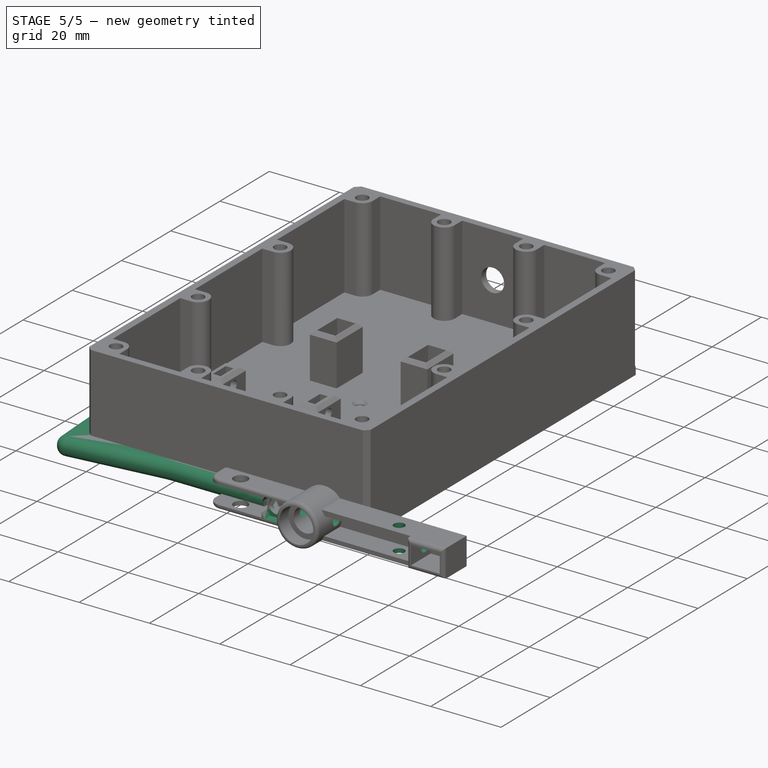
[diagram: stage 5 of 5 — iso view after this stage's code; geometry added in this stage tinted green]
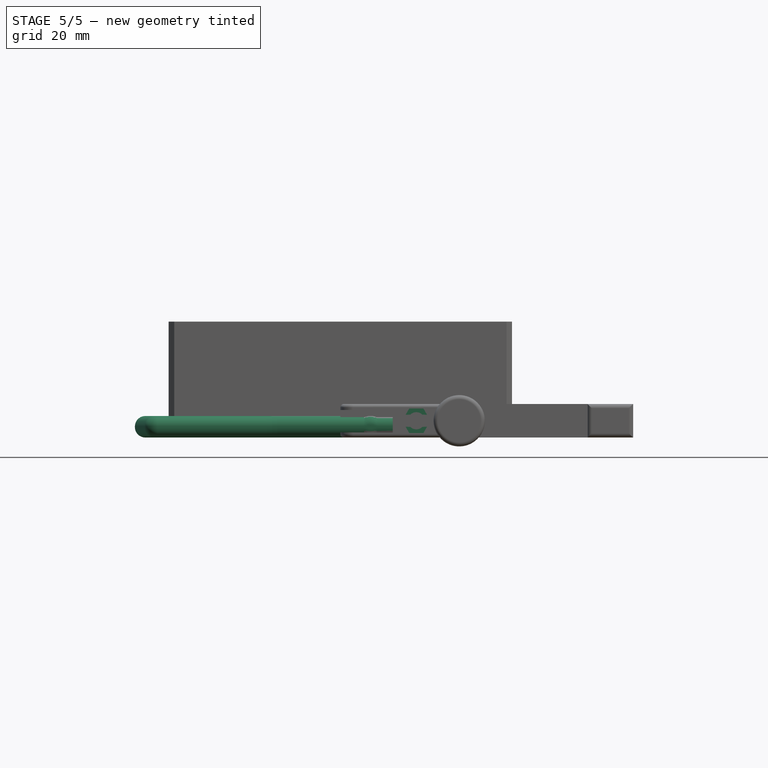
[diagram: stage 5 of 5 — front view after this stage's code; geometry added in this stage tinted green]
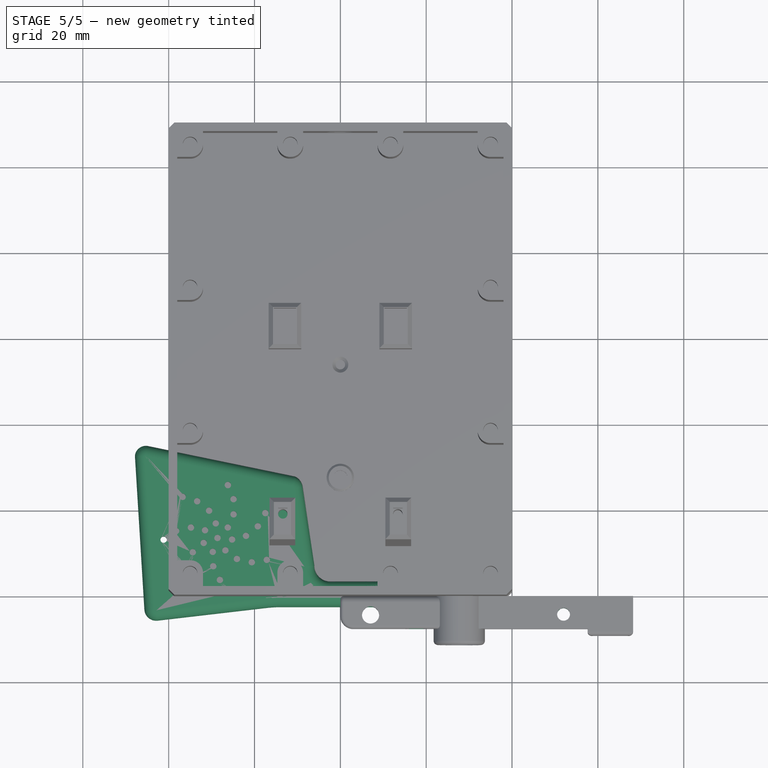
[diagram: stage 5 of 5 — top view after this stage's code; geometry added in this stage tinted green]
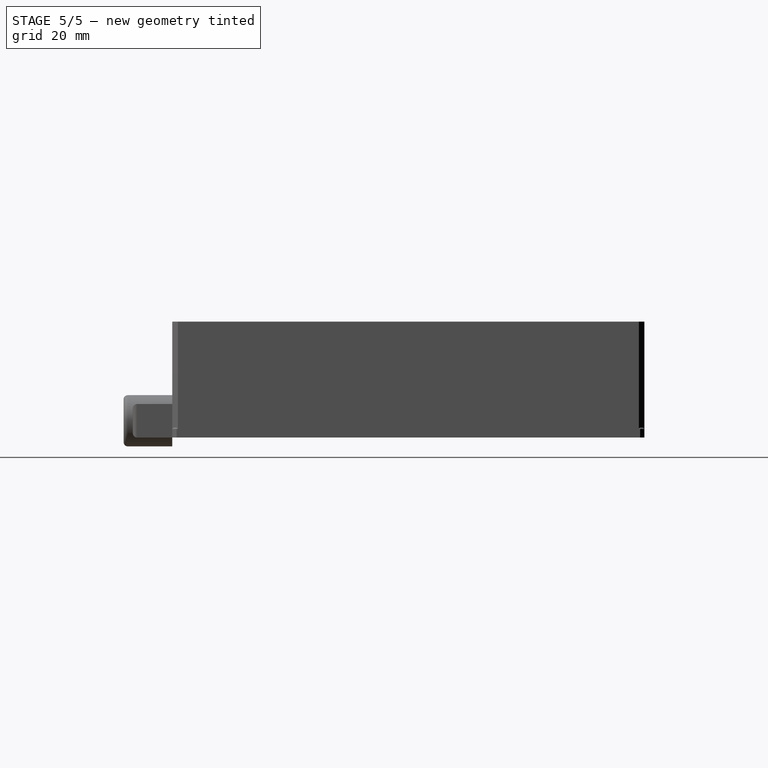
[diagram: stage 5 of 5 — right view after this stage's code; geometry added in this stage tinted green]
FEATURE [Sketcher::SketchObject] Sketch
  ArcFitTolerance = 1e-06
  AttachmentSupport = -> [XY_Plane001]
  FullyConstrained = false
  MakeInternals = false
  MapMode = 5
  sketch-geometry (13):
    g0: LineSegment StartX=-10.5661 StartY=27.9875 StartZ=0 EndX=-44.7799 EndY=35.0354 EndZ=0
    g1: ArcOfCircle CenterX=-45.2984 CenterY=32.5182 CenterZ=0 NormalX=0 NormalY=0 NormalZ=1 AngleXU=0 Radius=2.57001 StartAngle=1.36764 EndAngle=3.06905
    g2: LineSegment StartX=-47.8617 StartY=32.7045 StartZ=0 EndX=-45.6604 EndY=-3.08165 EndZ=0
    g3: ArcOfCircle CenterX=-42.8984 CenterY=-2.91176 CenterZ=0 NormalX=0 NormalY=0 NormalZ=1 AngleXU=0 Radius=2.76723 StartAngle=3.20303 EndAngle=4.8282
    g4: LineSegment StartX=-42.5786 StartY=-5.66045 StartZ=0 EndX=-17.082 EndY=-2.69439 EndZ=0
    g5: ArcOfCircle CenterX=-13.9423 CenterY=-29.684 CenterZ=0 NormalX=0 NormalY=0 NormalZ=1 AngleXU=0 Radius=27.1716 StartAngle=1.5507 EndAngle=1.68661
    g6: LineSegment StartX=-13.3963 StartY=-2.51787 StartZ=0 EndX=12.2 EndY=-2.51787 EndZ=0
    g7: LineSegment StartX=12.2 StartY=-2.51787 StartZ=0 EndX=12.2 EndY=3.52213 EndZ=0
    g8: LineSegment StartX=12.2 StartY=3.52213 StartZ=0 EndX=-2.38996 EndY=3.52213 EndZ=0
    g9: ArcOfCircle CenterX=-2.38996 CenterY=7.13158 CenterZ=0 NormalX=0 NormalY=0 NormalZ=1 AngleXU=0 Radius=3.60945 StartAngle=3.43122 EndAngle=4.71239
    g10: LineSegment StartX=-5.84908 StartY=6.10075 StartZ=0 EndX=-8.67927 EndY=25.4718 EndZ=0
    g11: ArcOfCircle CenterX=-11.9338 CenterY=24.9963 CenterZ=0 NormalX=0 NormalY=0 NormalZ=1 AngleXU=0 Radius=3.2891 StartAngle=0.145078 EndAngle=1.14193
    g12: Circle CenterX=7.04 CenterY=0.32 CenterZ=0 NormalX=0 NormalY=0 NormalZ=1 AngleXU=0 Radius=1.6
  constraints (21):
    c: Tangent(g0,g1) = -1.5708
    c: Coincident(g1,g2)
    c: Tangent(g2,g3) = -1.5708
    c: Tangent(g3,g4) = -1.5708
    c: Tangent(g4,g5) = 1.5708
    c: Coincident(g5,g6)
    c: Horizontal(g6)
    c: Coincident(g6,g7)
    c: Vertical(g7)
    c: Coincident(g7,g8)
    c: Horizontal(g8)
    c: Tangent(g8,g9) = 1.5708
    c: Coincident(g9,g10)
    c: Tangent(g10,g11) = -1.5708
    c: Coincident(g11,g0)
    c: DistanceY(g3,g1) = 35.43
    c: Diameter(g12) = 3.2
    c: DistanceX(g-1,g6) = 12.2
    c: DistanceY(g7,g7) = 6.04
    c: DistanceY(g-1,g12) = 0.32
    c: DistanceX(g-1,g12) = 7.04
FEATURE [PartDesign::Pad] Pad
  Direction = (0,0,1)
  Length = 5
  Length2 = 10
  Profile = -> Sketch
  ReferenceAxis = -> Sketch [N_Axis]
  Refine = true
  Suppressed = false
  Type = 0
FEATURE [PartDesign::Fillet] Fillet
  Base = -> Pad [Edge10,Edge13,Edge16,Edge19,Edge34,Edge31,Edge36,Edge4,Edge7,Edge30,Edge33,Edge35,Edge3,Edge6,Edge9,Edge12,Edge15,Edge18]
  BaseFeature = -> Pad
  Radius = 2.4
  Refine = true
  SupportTransform = false
  Suppressed = false
  UseAllEdges = false
FEATURE [Sketcher::SketchObject] Sketch001
  ArcFitTolerance = 1e-06
  AttachmentSupport = -> [Fillet]
  FullyConstrained = false
  MakeInternals = false
  MapMode = 5
  Placement = pos=(0,0,5) rot=(0,0,1;0rad)
  sketch-geometry (5):
    g0: Circle CenterX=-28.6201 CenterY=13.5875 CenterZ=0 NormalX=0 NormalY=0 NormalZ=1 AngleXU=0 Radius=0.75
    g1: Circle CenterX=-31.5308 CenterY=15.3865 CenterZ=0 NormalX=0 NormalY=0 NormalZ=1 AngleXU=0 Radius=0.75
    g2: Circle CenterX=-34.815 CenterY=16.0181 CenterZ=0 NormalX=0 NormalY=0 NormalZ=1 AngleXU=0 Radius=0.75
    g3: Circle CenterX=-38.2677 CenterY=15.2181 CenterZ=0 NormalX=0 NormalY=0 NormalZ=1 AngleXU=0 Radius=0.75
    g4: Circle CenterX=-41.173 CenterY=13.197 CenterZ=0 NormalX=0 NormalY=0 NormalZ=1 AngleXU=0 Radius=0.75
  constraints (5):
    c: Diameter(g0) = 1.5
    c: Diameter(g1) = 1.5
    c: Diameter(g2) = 1.5
    c: Diameter(g3) = 1.5
    c: Diameter(g4) = 1.5
FEATURE [PartDesign::Pocket] Pocket
  BaseFeature = -> Fillet
  Direction = (0,0,-1)
  Length = 5
  Length2 = 5
  Profile = -> Sketch001
  ReferenceAxis = -> Sketch001 [N_Axis]
  Refine = true
  Suppressed = false
  Type = 1
FEATURE [PartDesign::PolarPattern] PolarPattern
  Angle = 360
  Axis = -> Pocket [Edge53]
  BaseFeature = -> Pocket
  Mode = 0
  Occurrences = 7
  Offset = 120
  Originals = -> [Pocket]
  Refine = true
  Suppressed = false
  TransformMode = 0
FEATURE [PartDesign::Fillet] Fillet005
  Base = -> Fillet004 [Edge51,Edge84,Edge39,Edge85]
  BaseFeature = -> Fillet004
  Placement = pos=(0,0,0) rot=(1,0,0;1.5708rad)
  Radius = 1
  Refine = true
  SupportTransform = false
  Suppressed = false
  UseAllEdges = false
FEATURE [Sketcher::SketchObject] Sketch011
  ArcFitTolerance = 1e-06
  AttachmentSupport = -> [Fillet005]
  FullyConstrained = true
  MakeInternals = false
  MapMode = 5
  Placement = pos=(58.8,-1.141e-13,0) rot=(0.707107,0,0.707107;3.14159rad)
  sketch-geometry (1):
    g0: Circle CenterX=3.9 CenterY=3.5 CenterZ=0 NormalX=0 NormalY=0 NormalZ=1 AngleXU=0 Radius=1.5
  constraints (3):
    c: Diameter(g0) = 3
    c: DistanceX(g-1,g0) = 3.9
    c: DistanceY(g-1,g0) = 3.5
FEATURE [PartDesign::Pocket] Pocket007
  BaseFeature = -> Fillet005
  Direction = (-1,1.9e-15,2e-16)
  Length = 5
  Length2 = 5
  Placement = pos=(0,0,0) rot=(1,0,0;1.5708rad)
  Profile = -> Sketch011
  ReferenceAxis = -> Sketch011 [N_Axis]
  Refine = true
  Suppressed = false
  Type = 1
FEATURE [Sketcher::SketchObject] Sketch012
  ArcFitTolerance = 1e-06
  AttachmentSupport = -> [Pocket007]
  FullyConstrained = true
  MakeInternals = false
  MapMode = 5
  Placement = pos=(0,0,-2.6e-15) rot=(1,0,0;3.14159rad)
  sketch-geometry (1):
    g0: Circle CenterX=52 CenterY=4.25 CenterZ=0 NormalX=0 NormalY=0 NormalZ=1 AngleXU=0 Radius=1.5
  constraints (3):
    c: Diameter(g0) = 3
    c: DistanceY(g-1,g0) = 4.25
    c: DistanceX(g-1,g0) = 52
FEATURE [PartDesign::Pocket] Pocket008
  BaseFeature = -> Pocket007
  Direction = (0,0,1)
  Length = 5
  Length2 = 5
  Placement = pos=(0,0,0) rot=(1,0,0;1.5708rad)
  Profile = -> Sketch012
  ReferenceAxis = -> Sketch012 [N_Axis]
  Refine = true
  Suppressed = false
  Type = 1
FEATURE [Sketcher::SketchObject] Sketch013
  ArcFitTolerance = 1e-06
  AttachmentSupport = -> [Pocket008]
  FullyConstrained = true
  MakeInternals = false
  MapMode = 5
  Placement = pos=(0,-7.6,0) rot=(1,0,0;1.5708rad)
  sketch-geometry (7):
    g0: LineSegment StartX=16.05 StartY=1.04212 StartZ=0 EndX=19.35 EndY=1.04212 EndZ=0
    g1: LineSegment StartX=19.35 StartY=1.04212 StartZ=0 EndX=21 EndY=3.9 EndZ=0
    g2: LineSegment StartX=21 StartY=3.9 StartZ=0 EndX=19.35 EndY=6.75788 EndZ=0
    g3: LineSegment StartX=19.35 StartY=6.75788 StartZ=0 EndX=16.05 EndY=6.75788 EndZ=0
    g4: LineSegment StartX=16.05 StartY=6.75788 StartZ=0 EndX=14.4 EndY=3.9 EndZ=0
    g5: LineSegment StartX=14.4 StartY=3.9 StartZ=0 EndX=16.05 EndY=1.04212 EndZ=0
    g6: Circle [constr] CenterX=17.7 CenterY=3.9 CenterZ=0 NormalX=0 NormalY=0 NormalZ=1 AngleXU=0 Radius=3.3
  constraints (17):
    c: Coincident(g0,g1)
    c: Coincident(g1,g2)
    c: Coincident(g2,g3)
    c: Coincident(g3,g4)
    c: Coincident(g4,g5)
    c: Coincident(g5,g0)
    c: Equal(g0, g1-g5) x5
    c: PointOnObject(g0,g6)
    c: PointOnObject(g1,g6)
    c: PointOnObject(g2,g6)
    c: PointOnObject(g3,g6)
    c: PointOnObject(g4,g6)
    c: PointOnObject(g5,g6)
    c: Radius(g6) = 3.3
    c: DistanceY(g-1,g6) = 3.9
    c: DistanceX(g-1,g6) = 17.7
    c: DistanceY(g0,g0) = 0
FEATURE [PartDesign::Pocket] Pocket009
  BaseFeature = -> Pocket008
  Direction = (0,1,-2e-16)
  Length = 2.3
  Length2 = 5
  Placement = pos=(0,0,0) rot=(1,0,0;1.5708rad)
  Profile = -> Sketch013
  ReferenceAxis = -> Sketch013 [N_Axis]
  Refine = true
  Suppressed = false
  Type = 0
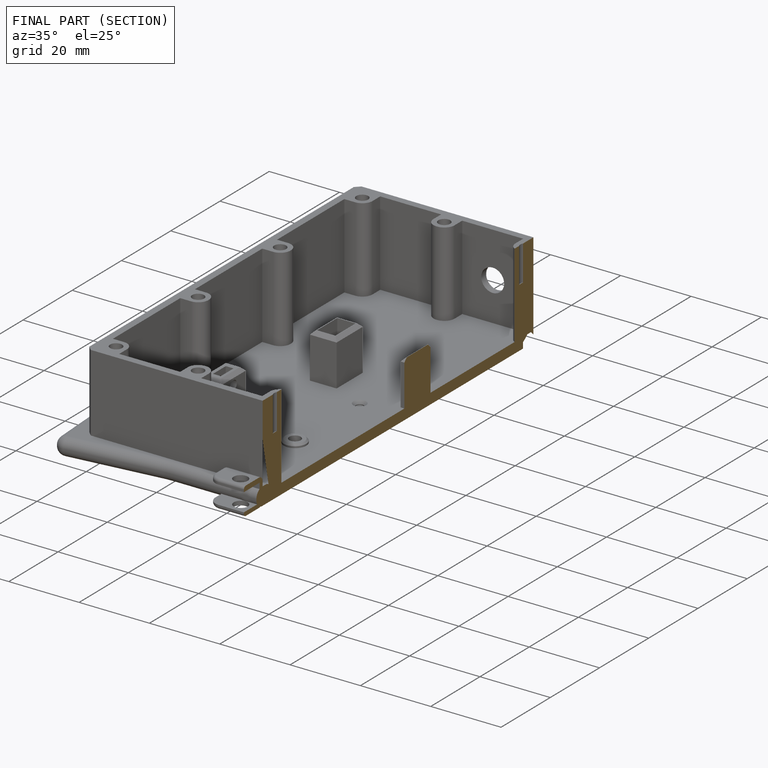
[diagram: finished part — half-section view (interior)]
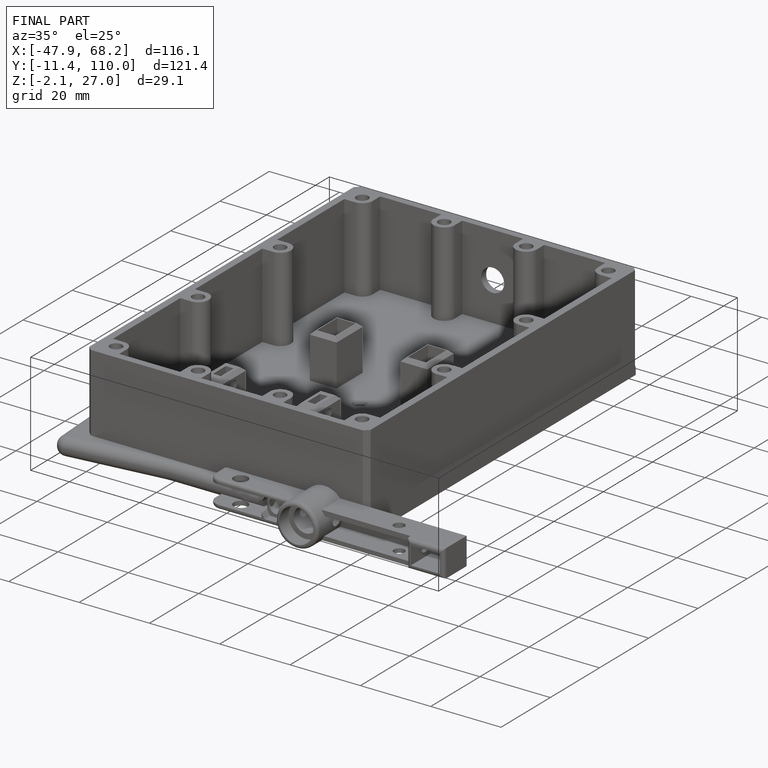
[diagram: finished part — iso view with bounding-box wireframe]
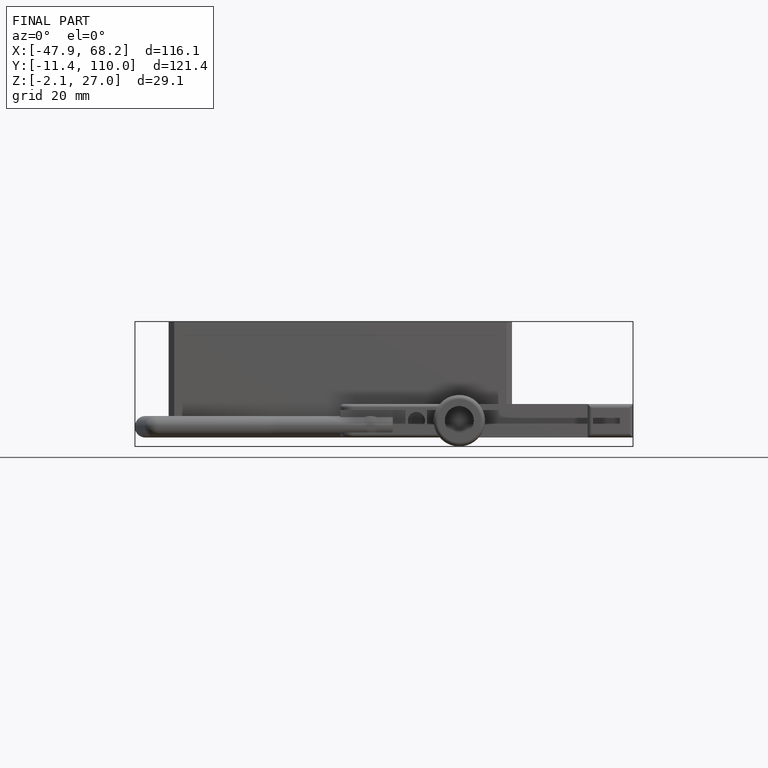
[diagram: finished part — front view with bounding-box wireframe]
